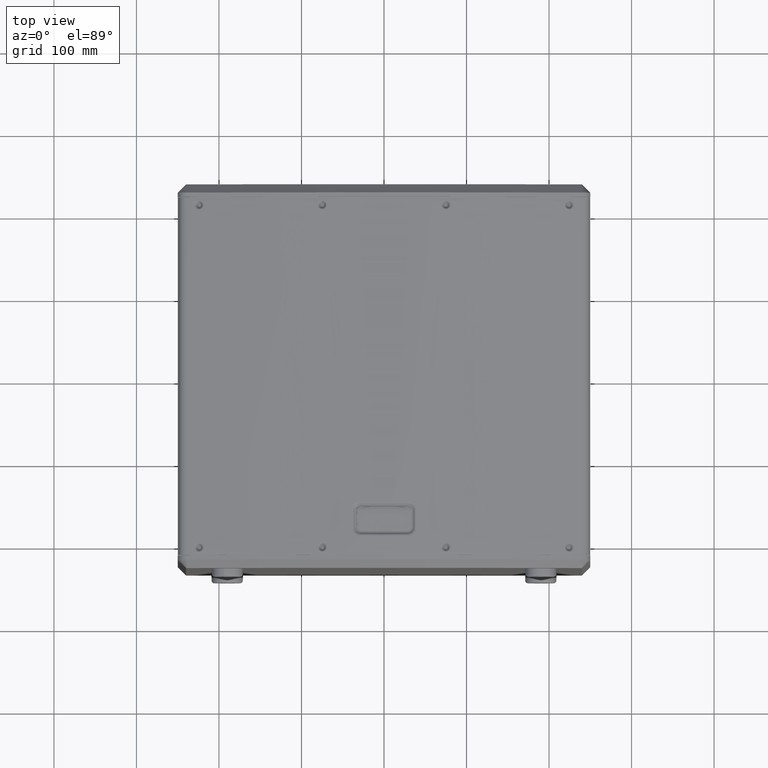
[diagram: clean part render]
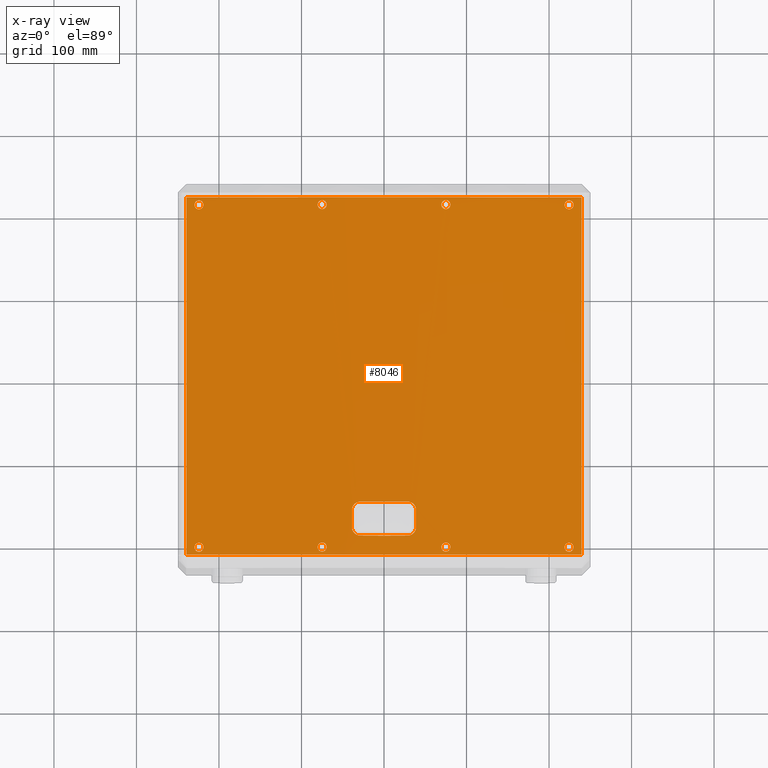
[diagram: x-ray — body ghosted, one internal face saturated and labeled with its STEP entity id]
A machine part, top view, then the same camera in x-ray: the body is ghosted and one INTERNAL B-rep face — a face not visible from any outside direction — is saturated and labeled: STEP entity #8046.
In plain terms, the highlighted cylindrical surface (partial cylindrical patch) has radius 1672.5 mm, axis along (-0, -1, 0).
Its self-contained STEP definition (entity closure, byte-faithful):
#46 = CARTESIAN_POINT ( 'NONE',  ( 78.47833913458070754, 203.3212166450574045, 273.4309079026693894 ) ) ;
#49 =( BOUNDED_CURVE ( )  B_SPLINE_CURVE ( 3, ( #5875, #15711, #12498, #25490 ),
 .UNSPECIFIED., .F., .F. ) 
 B_SPLINE_CURVE_WITH_KNOTS ( ( 4, 4 ),
 ( 3.124231709663202849, 3.158953597516382494 ),
 .UNSPECIFIED. ) 
 CURVE ( )  GEOMETRIC_REPRESENTATION_ITEM ( )  RATIONAL_B_SPLINE_CURVE ( ( 1.000000000000000000, 0.9998995350653947511, 0.9998995350653947511, 1.000000000000000000 ) ) 
 REPRESENTATION_ITEM ( '' )  );
#120 = CARTESIAN_POINT ( 'NONE',  ( 227.4832068263624478, 203.1015107558604882, 259.7304775470456661 ) ) ;
#227 = CARTESIAN_POINT ( 'NONE',  ( 224.8917643402972146, -212.9313800391532823, 260.0841857438475699 ) ) ;
#259 = CARTESIAN_POINT ( 'NONE',  ( -75.03556643069934751, -212.9793919232952533, 273.5891075419119716 ) ) ;
#272 = CARTESIAN_POINT ( 'NONE',  ( 32.21199151771963187, -153.0822300613589846, 274.9629289592322721 ) ) ;
#281 = CARTESIAN_POINT ( 'NONE',  ( -69.93447330605522438, 209.6695212975577647, 273.8103638167587519 ) ) ;
#324 = CARTESIAN_POINT ( 'NONE',  ( 229.2350000324951509, 209.6648964323844950, 259.4890260438849623 ) ) ;
#407 = CARTESIAN_POINT ( 'NONE',  ( 218.9575506619860334, 206.3601566851277198, 260.8786277408782439 ) ) ;
#467 = CARTESIAN_POINT ( 'NONE',  ( -74.32167062926488654, -212.9313800391531402, 273.6209777591968191 ) ) ;
#487 = CARTESIAN_POINT ( 'NONE',  ( -71.85032197090251316, 202.9894345920398564, 273.7290990020275672 ) ) ;
#500 = ORIENTED_EDGE ( 'NONE', *, *, #7908, .F. ) ;
#594 = CARTESIAN_POINT ( 'NONE',  ( 5.995846908675595443E-13, -193.7426406871198310, 275.2731273326911605 ) ) ;
#601 = CARTESIAN_POINT ( 'NONE',  ( 220.3748924882643792, 211.3208894897422283, 260.6908609227193665 ) ) ;
#610 = VERTEX_POINT ( 'NONE', #37901 ) ;
#627 = VERTEX_POINT ( 'NONE', #41515 ) ;
#630 = CARTESIAN_POINT ( 'NONE',  ( -218.9832451129418303, -208.7556942169256899, 260.8752327086066316 ) ) ;
#644 = CARTESIAN_POINT ( 'NONE',  ( 71.85366650353702767, 212.0130942038220780, 273.7289555562481382 ) ) ;
#684 = CARTESIAN_POINT ( 'NONE',  ( -73.63736927097930618, 202.1905662153406240, 273.6512848215728013 ) ) ;
#762 = VERTEX_POINT ( 'NONE', #13409 ) ;
#768 = DIRECTION ( 'NONE',  ( -1.000000000000000000, 0.0000000000000000000, 0.0000000000000000000 ) ) ;
#816 = EDGE_LOOP ( 'NONE', ( #23047, #500 ) ) ;
#818 = CARTESIAN_POINT ( 'NONE',  ( 79.89427955437312789, -205.1510971964762291, 273.3637966104690804 ) ) ;
#831 = ORIENTED_EDGE ( 'NONE', *, *, #36397, .F. ) ;
#846 = CARTESIAN_POINT ( 'NONE',  ( -225.8267930571524857, -202.2526582892778606, 259.9570731744574914 ) ) ;
#857 = CARTESIAN_POINT ( 'NONE',  ( 73.81075711121552274, 212.8586316552661515, 273.6436609219759930 ) ) ;
#981 = CARTESIAN_POINT ( 'NONE',  ( -219.1383718454412985, 209.2682698928433354, 260.8547380930301642 ) ) ;
#1018 = CARTESIAN_POINT ( 'NONE',  ( 223.6349280660629688, -202.0686199608448987, 260.2542490800510677 ) ) ;
#1116 = EDGE_LOOP ( 'NONE', ( #3848, #24473 ) ) ;
#1155 = CARTESIAN_POINT ( 'NONE',  ( -222.6979258868947795, -212.7467367480385008, 260.3804403225718147 ) ) ;
#1178 = ORIENTED_EDGE ( 'NONE', *, *, #26375, .F. ) ;
#1186 = CARTESIAN_POINT ( 'NONE',  ( -220.4382601683301743, 211.3729385879777283, 260.6824246968669740 ) ) ;
#1306 = CARTESIAN_POINT ( 'NONE',  ( 226.0799383136619838, -202.3366362489955463, 259.9225559902009195 ) ) ;
#1331 = VERTEX_POINT ( 'NONE', #17515 ) ;
#1369 = CARTESIAN_POINT ( 'NONE',  ( -224.8053045294782351, 212.9525400887506237, 260.0959529335290767 ) ) ;
#1436 = CARTESIAN_POINT ( 'NONE',  ( -70.45318514866723092, -210.6094736031311925, 273.7885813283808716 ) ) ;
#1501 = CARTESIAN_POINT ( 'NONE',  ( -80.25665956182481864, -208.8367375503936785, 273.3464212812656342 ) ) ;
#1601 = CARTESIAN_POINT ( 'NONE',  ( -224.7824183560069002, 202.0451635282462917, 260.0990582089063992 ) ) ;
#1607 = CIRCLE ( 'NONE', #8429, 1672.499999999999773 ) ;
#1640 = CARTESIAN_POINT ( 'NONE',  ( -72.61227708043983853, -212.4417028824303486, 273.6961459690717220 ) ) ;
#1777 = CARTESIAN_POINT ( 'NONE',  ( 69.61017672669872525, -206.3466354340849023, 273.8238994002356890 ) ) ;
#1776 = CARTESIAN_POINT ( 'NONE',  ( -229.6582470838178835, -206.9525775825308642, 259.4304072209006904 ) ) ;
#1854 = CARTESIAN_POINT ( 'NONE',  ( -73.29325262254933193, -202.2884366224853068, 273.6664150365438104 ) ) ;
#1941 = CARTESIAN_POINT ( 'NONE',  ( 227.8911089403304970, -203.4387997755203230, 259.6744246676805687 ) ) ;
#2038 = CARTESIAN_POINT ( 'NONE',  ( 226.0972818610047170, 212.6478338837883371, 259.9201629923524592 ) ) ;
#2069 = CARTESIAN_POINT ( 'NONE',  ( -74.87109434104502270, -202.0206127046504037, 273.5964859570533463 ) ) ;
#2077 = CARTESIAN_POINT ( 'NONE',  ( -35.51751017382333941, -155.0491448355863895, 274.8959750834161468 ) ) ;
#2096 = CARTESIAN_POINT ( 'NONE',  ( -38.77553784688689120, -184.7943567525495610, 274.8235820578985340 ) ) ;
#2144 = CARTESIAN_POINT ( 'NONE',  ( 229.6283870856868816, -208.2916435258183014, 259.4345455623831072 ) ) ;
#2205 = CARTESIAN_POINT ( 'NONE',  ( 71.84958536817089225, -212.0102256592378467, 273.7291309365261895 ) ) ;
#2204 = CARTESIAN_POINT ( 'NONE',  ( -223.3875984153953311, -212.8992933274361690, 260.2876106995552732 ) ) ;
#2288 = CARTESIAN_POINT ( 'NONE',  ( -69.60932729413094933, -208.6490408378483892, 273.8239347456034807 ) ) ;
#2360 = CARTESIAN_POINT ( 'NONE',  ( 229.6705790831812237, -207.7593216695104275, 259.4286966364595628 ) ) ;
#2377 = CARTESIAN_POINT ( 'NONE',  ( -226.0124283851736209, 212.6779609354313152, 259.9317378512446339 ) ) ;
#2505 = CARTESIAN_POINT ( 'NONE',  ( -80.03086931813982119, -209.5116889564441465, 273.3572512283651577 ) ) ;
#2577 = CARTESIAN_POINT ( 'NONE',  ( 229.3036885057954635, -205.4802870622988280, 259.4795226906784364 ) ) ;
#2588 = CARTESIAN_POINT ( 'NONE',  ( -228.6688361738823119, 204.3052866853534795, 259.5672753584061070 ) ) ;
#2597 = CARTESIAN_POINT ( 'NONE',  ( 77.92060859939057593, 212.0933927627978903, 273.4570143883869946 ) ) ;
#2626 = CARTESIAN_POINT ( 'NONE',  ( -228.6647661651188059, -204.2991828518010209, 259.5678373203353999 ) ) ;
#2654 = CARTESIAN_POINT ( 'NONE',  ( -80.29320135012444837, 206.3591013008813206, 273.3446621117982431 ) ) ;
#2673 = CARTESIAN_POINT ( 'NONE',  ( 228.0407960148164648, 211.4314315833750300, 259.6538469213662097 ) ) ;
#2709 = FACE_BOUND ( 'NONE', #816, .T. ) ;
#2753 = CARTESIAN_POINT ( 'NONE',  ( 239.5036101083034339, 216.5000000000000284, 258.0357260598810285 ) ) ;
#2810 = CARTESIAN_POINT ( 'NONE',  ( 79.01301638851130349, 211.1722044301049834, 273.4057147943786958 ) ) ;
#2861 = CARTESIAN_POINT ( 'NONE',  ( -74.49826683392642224, 212.9520752822040208, 273.6131225107647538 ) ) ;
#2988 = B_SPLINE_CURVE_WITH_KNOTS ( 'NONE', 3,
 ( #39921, #7565, #7779, #20554, #1155, #8398, #2204, #37974, #5167, #15658, #8187, #30983, #5811, #41378, #24806, #38199, #40972, #24591, #18842, #12242, #21182, #21397, #9014, #27987, #31403, #27769, #1776, #37367, #31820, #18224, #35026, #5594, #18011, #2626, #8590, #34174, #41598, #28619, #28404, #34585 ),
 .UNSPECIFIED., .F., .F.,
 ( 4, 2, 2, 2, 2, 2, 2, 2, 2, 2, 2, 2, 2, 2, 2, 2, 2, 2, 2, 4 ),
 ( 0.02643147392705458634, 0.02750118398804780873, 0.02857089404904103458, 0.02910574907953765444, 0.02964060411003427431, 0.03071031417102752098, 0.03178002423202076765, 0.03284973429301400738, 0.03391944435400725405, 0.03498915441500050072, 0.03605886447599374045, 0.03712857453698698712, 0.03819828459798023379, 0.03926799465897347352, 0.03980284968947008645, 0.04033770471996669937, 0.04140741478095986972, 0.04247712484195304006, 0.04301197987244969462, 0.04354683490294634918 ),
 .UNSPECIFIED. ) ;
#3067 = CARTESIAN_POINT ( 'NONE',  ( -79.53544925668069254, 210.4756050529087190, 273.3809127551978690 ) ) ;
#3077 = CARTESIAN_POINT ( 'NONE',  ( 38.58769507108883090, -185.7503694801092422, 274.8279241954219856 ) ) ;
#3194 = ORIENTED_EDGE ( 'NONE', *, *, #22137, .T. ) ;
#3276 = CARTESIAN_POINT ( 'NONE',  ( -78.22327311577942055, 203.1068351271996164, 273.4428864021427898 ) ) ;
#3289 = CARTESIAN_POINT ( 'NONE',  ( 31.58871868458513177, -193.1336097304300381, 274.9749096419843681 ) ) ;
#3294 = CARTESIAN_POINT ( 'NONE',  ( 229.6781936936238822, 207.2204554805362022, 259.4276414173349394 ) ) ;
#3431 = CARTESIAN_POINT ( 'NONE',  ( 29.68634586093532235, -152.5203997675992014, 275.0097719537525336 ) ) ;
#3442 = CARTESIAN_POINT ( 'NONE',  ( -71.98964996701964481, 212.0934665965493195, 273.7230852788830475 ) ) ;
#3463 = EDGE_CURVE ( 'NONE', #37814, #5328, #39601, .T. ) ;
#3480 = CARTESIAN_POINT ( 'NONE',  ( 38.32279831266212966, -186.6877990612348981, 274.8340179103149694 ) ) ;
#3597 = CARTESIAN_POINT ( 'NONE',  ( -221.1181616570746939, -211.9502665404291974, 260.5918775540159800 ) ) ;
#3628 = CARTESIAN_POINT ( 'NONE',  ( -75.56737123743376117, -212.9367585654762536, 273.5651113607095226 ) ) ;
#3643 = CARTESIAN_POINT ( 'NONE',  ( 31.59546330531227198, -152.8845377165533819, 274.9746916663307843 ) ) ;
#3654 = CARTESIAN_POINT ( 'NONE',  ( -71.55213705344927178, 211.7779358943525949, 273.7418763751215920 ) ) ;
#3765 = EDGE_CURVE ( 'NONE', #18736, #16451, #9119, .T. ) ;
#3809 = CARTESIAN_POINT ( 'NONE',  ( 220.3683449306077478, -211.3138725742676627, 260.6917309791150501 ) ) ;
#3814 = CARTESIAN_POINT ( 'NONE',  ( -222.0123882834675726, -202.5139851191305240, 260.4723952416154589 ) ) ;
#3848 = ORIENTED_EDGE ( 'NONE', *, *, #7787, .F. ) ;
#3862 = CARTESIAN_POINT ( 'NONE',  ( -69.61687903943199274, 208.6430991779664907, 273.8236176387393357 ) ) ;
#3988 = CARTESIAN_POINT ( 'NONE',  ( 221.0444617186303446, 211.8997584075102054, 260.6017117828056939 ) ) ;
#3993 = CARTESIAN_POINT ( 'NONE',  ( 80.09834306273680227, -209.3314135056747318, 273.3540172377126964 ) ) ;
#4029 = CARTESIAN_POINT ( 'NONE',  ( 71.14173075679164526, 203.5729020626684758, 273.7594164816163698 ) ) ;
#4073 = CARTESIAN_POINT ( 'NONE',  ( -71.29217554839827642, 203.4317884557818843, 273.7530056467044801 ) ) ;
#4128 = CARTESIAN_POINT ( 'NONE',  ( 75.23145454955358957, -212.9732452935169533, 273.5802993671925378 ) ) ;
#4153 = CARTESIAN_POINT ( 'NONE',  ( 2.775557561562891351E-14, 718.8688114800565927, -1397.226872667308953 ) ) ;
#4154 = CARTESIAN_POINT ( 'NONE',  ( -225.1327624559402523, 202.0906187168252472, 260.0515024012727849 ) ) ;
#4203 = CARTESIAN_POINT ( 'NONE',  ( 78.87916363856504631, -203.6845018578578106, 273.4120412829567499 ) ) ;
#4225 = CARTESIAN_POINT ( 'NONE',  ( -29.03472014366957055, -152.5090993227673550, 275.0210859280003319 ) ) ;
#4232 = CARTESIAN_POINT ( 'NONE',  ( -222.6798411235820652, -202.2585274510030331, 260.3828678127261469 ) ) ;
#4265 = CARTESIAN_POINT ( 'NONE',  ( -79.80890422973402565, -210.0024018362596792, 273.3678706555281224 ) ) ;
#4283 = CARTESIAN_POINT ( 'NONE',  ( 223.6349280660629688, -202.0686199608448987, 260.2542490800510677 ) ) ;
#4362 = CARTESIAN_POINT ( 'NONE',  ( -227.1180354590962907, 202.8406317932800107, 259.7805906496129751 ) ) ;
#4435 = CARTESIAN_POINT ( 'NONE',  ( 221.0217117465713841, -203.1064997266231558, 260.6047611785182312 ) ) ;
#4479 = CARTESIAN_POINT ( 'NONE',  ( -78.88247474268740689, -211.3121946363199868, 273.4118850208869844 ) ) ;
#4568 = CARTESIAN_POINT ( 'NONE',  ( -229.0424851212696069, 204.9115523996979960, 259.5156618198230944 ) ) ;
#4582 = CARTESIAN_POINT ( 'NONE',  ( -219.4821655171579380, 210.0885552099495612, 260.8092745253450744 ) ) ;
#4622 = CARTESIAN_POINT ( 'NONE',  ( -72.78884869159273308, -202.4780195060278913, 273.6884636870739769 ) ) ;
#4627 = VECTOR ( 'NONE', #20059, 1000.000000000000000 ) ;
#4682 = CARTESIAN_POINT ( 'NONE',  ( -77.45806013270636470, -202.6378678918085541, 273.4785241776272073 ) ) ;
#4736 = CARTESIAN_POINT ( 'NONE',  ( 38.83861003022300196, -162.5000000000000000, 274.8221135681181408 ) ) ;
#4764 = CARTESIAN_POINT ( 'NONE',  ( -228.7683268545962108, 210.5339818406125971, 259.5535332568095441 ) ) ;
#4767 = VECTOR ( 'NONE', #22058, 1000.000000000000000 ) ;
#4781 = CARTESIAN_POINT ( 'NONE',  ( -222.6779767943712045, 202.2592795418174774, 260.3831177770044860 ) ) ;
#4821 = ORIENTED_EDGE ( 'NONE', *, *, #16033, .F. ) ;
#4834 = CARTESIAN_POINT ( 'NONE',  ( -72.15186137404543842, -202.7952340652045393, 273.7161123667166862 ) ) ;
#4896 = CARTESIAN_POINT ( 'NONE',  ( -77.29856112025596815, -202.5585985023438980, 273.4859121573728657 ) ) ;
#5049 = CARTESIAN_POINT ( 'NONE',  ( -36.42896431451924855, -155.9563090810468680, 274.8764085957659518 ) ) ;
#5117 = CARTESIAN_POINT ( 'NONE',  ( 227.0546629412712036, -212.1880155089765765, 259.7892570716143155 ) ) ;
#5168 = CARTESIAN_POINT ( 'NONE',  ( 74.32167062926490075, -202.0686199608469167, 273.6209777591969896 ) ) ;
#5167 = CARTESIAN_POINT ( 'NONE',  ( -223.9192252088703015, -212.9602439436615100, 260.2158752212671970 ) ) ;
#5328 = VERTEX_POINT ( 'NONE', #6470 ) ;
#5401 = ORIENTED_EDGE ( 'NONE', *, *, #26890, .F. ) ;
#5452 = CARTESIAN_POINT ( 'NONE',  ( -72.62654866573544155, -202.5515704110216575, 273.6955251454808717 ) ) ;
#5546 = CARTESIAN_POINT ( 'NONE',  ( -228.2271716966231736, 211.2393270140806578, 259.6281830538364943 ) ) ;
#5595 = CARTESIAN_POINT ( 'NONE',  ( 71.28832675423738863, -211.5649151768824368, 273.7531701117360967 ) ) ;
#5594 = CARTESIAN_POINT ( 'NONE',  ( -229.1985419921563505, -205.2305514340413026, 259.4940737210951625 ) ) ;
#5669 = CARTESIAN_POINT ( 'NONE',  ( -74.32167062926488654, -212.9313800391531402, 273.6209777591968191 ) ) ;
#5681 = CARTESIAN_POINT ( 'NONE',  ( -80.33289541495950914, -208.4856462634871548, 273.3427540224160452 ) ) ;
#5700 = CARTESIAN_POINT ( 'NONE',  ( -38.52675022520060821, -186.0615153820927787, 274.8293330264988867 ) ) ;
#5730 = CARTESIAN_POINT ( 'NONE',  ( 76.09974028960193948, -202.1412483558101201, 273.5409744349816492 ) ) ;
#5756 = CARTESIAN_POINT ( 'NONE',  ( 228.8154128401471326, -204.5226050747809268, 259.5470367985312237 ) ) ;
#5811 = CARTESIAN_POINT ( 'NONE',  ( -225.8484976744185815, -212.7406422714546750, 259.9541123258488824 ) ) ;
#5842 = CARTESIAN_POINT ( 'NONE',  ( -76.97528529902912453, 202.4078267108489513, 273.5008641334434287 ) ) ;
#5857 = CARTESIAN_POINT ( 'NONE',  ( 227.5032948797135646, 211.8942200635084419, 259.7277357666791886 ) ) ;
#5875 = CARTESIAN_POINT ( 'NONE',  ( 29.03472014366958120, -152.5090993227674119, 275.0210859280003319 ) ) ;
#5901 = FACE_BOUND ( 'NONE', #14460, .T. ) ;
#5979 = VERTEX_POINT ( 'NONE', #12832 ) ;
#5983 = CARTESIAN_POINT ( 'NONE',  ( 225.5892513424875574, -212.8139592181010471, 259.9894250081621294 ) ) ;
#6048 = CARTESIAN_POINT ( 'NONE',  ( 75.23437638209313150, 212.9641575856672659, 273.5801391458948046 ) ) ;
#6079 = CARTESIAN_POINT ( 'NONE',  ( 224.3470235356547846, 202.0206436173326665, 260.1580522155739459 ) ) ;
#6287 = CARTESIAN_POINT ( 'NONE',  ( -79.89310762601917304, 209.8516432206059790, 273.3638527728362533 ) ) ;
#6303 = CARTESIAN_POINT ( 'NONE',  ( 229.6850282561165670, 207.5771082567367785, 259.4266935993666152 ) ) ;
#6435 = CARTESIAN_POINT ( 'NONE',  ( 77.76046609416850686, 202.7961536509620828, 273.4645001229938543 ) ) ;
#6470 = CARTESIAN_POINT ( 'NONE',  ( 223.6349280660632814, 202.0686199608448135, 260.2542490800508972 ) ) ;
#6489 = CARTESIAN_POINT ( 'NONE',  ( -75.58868608828947799, 202.0686199608470304, 273.5641377632132958 ) ) ;
#6595 = CARTESIAN_POINT ( 'NONE',  ( 77.29799146166436685, -212.4416728795921188, 273.4859385142877386 ) ) ;
#6641 = LINE ( 'NONE', #7074, #4627 ) ;
#6647 = CARTESIAN_POINT ( 'NONE',  ( 75.58868608828949220, 212.9313800391530833, 273.5641377632132389 ) ) ;
#6724 = CARTESIAN_POINT ( 'NONE',  ( 36.83405393917575310, -189.5429119307944745, 274.8675118906686521 ) ) ;
#6816 = CARTESIAN_POINT ( 'NONE',  ( 219.1023083006818979, 205.8420634155170603, 260.8595035104394810 ) ) ;
#6844 = CARTESIAN_POINT ( 'NONE',  ( -218.8640131791959789, -206.9751836509462350, 260.8909741263909154 ) ) ;
#6882 = CARTESIAN_POINT ( 'NONE',  ( 33.96287671428400046, -153.8877658210701895, 274.9283419190000473 ) ) ;
#6894 = CARTESIAN_POINT ( 'NONE',  ( -69.87263734053581743, 205.4803570224658813, 273.8129462826240683 ) ) ;
#6931 = CARTESIAN_POINT ( 'NONE',  ( -19.35733093019933904, -193.6587252428109309, 275.1891114209242346 ) ) ;
#7023 = CARTESIAN_POINT ( 'NONE',  ( 219.3734936610675561, 209.8516118114355606, 260.8236468898466569 ) ) ;
#7028 = CARTESIAN_POINT ( 'NONE',  ( 76.97013148145539674, -212.5848564997659764, 273.5010752015380717 ) ) ;
#7051 = CARTESIAN_POINT ( 'NONE',  ( 221.1782779719805774, -212.0072843730999637, 260.5838819142049374 ) ) ;
#7057 = CARTESIAN_POINT ( 'NONE',  ( -220.0638224003850780, -204.0316464736795865, 260.7321760446232588 ) ) ;
#7074 = CARTESIAN_POINT ( 'NONE',  ( 38.83861003022301617, 718.8688114800565927, 274.8221135681184819 ) ) ;
#7213 = CARTESIAN_POINT ( 'NONE',  ( -38.83861003022364144, -183.5000000000000000, 274.8221135681183682 ) ) ;
#7230 = CARTESIAN_POINT ( 'NONE',  ( 221.0181899416054421, 203.1090316518347549, 260.6052308477994757 ) ) ;
#7233 = CIRCLE ( 'NONE', #27618, 1672.499999999999773 ) ;
#7235 = CARTESIAN_POINT ( 'NONE',  ( 80.20075718393241004, -205.9884534867867956, 273.3491033269886543 ) ) ;
#7307 = CARTESIAN_POINT ( 'NONE',  ( -73.81095140544142907, 202.1502461029578512, 273.6436263643626603 ) ) ;
#7426 = CARTESIAN_POINT ( 'NONE',  ( 80.24780795159877300, -206.1633287318453540, 273.3468433861863787 ) ) ;
#7450 = CARTESIAN_POINT ( 'NONE',  ( 221.3141944883707026, -202.9006787588913028, 260.5657487918492734 ) ) ;
#7459 = CARTESIAN_POINT ( 'NONE',  ( -219.4729042689766914, -204.9295953284543543, 260.8104959245492296 ) ) ;
#7472 = CARTESIAN_POINT ( 'NONE',  ( 74.16052761277737204, 212.9219237769407300, 273.6281759719383899 ) ) ;
#7491 = CARTESIAN_POINT ( 'NONE',  ( -80.09350408519949838, -209.3448896261828338, 273.3542488493647511 ) ) ;
#7503 = ORIENTED_EDGE ( 'NONE', *, *, #8487, .T. ) ;
#7565 = CARTESIAN_POINT ( 'NONE',  ( -221.4050472851394034, -212.1572161521498572, 260.5536130436917119 ) ) ;
#7595 = CARTESIAN_POINT ( 'NONE',  ( -220.0612668155703773, 204.0350029719492113, 260.7325150965309604 ) ) ;
#7662 = CARTESIAN_POINT ( 'NONE',  ( 38.52675022520057979, -159.9384846179071360, 274.8293330264988867 ) ) ;
#7668 = CARTESIAN_POINT ( 'NONE',  ( 219.6189319532671220, -210.3138334419055298, 260.7911556405330771 ) ) ;
#7675 = CARTESIAN_POINT ( 'NONE',  ( -220.9746277087687076, -211.8467259933788966, 260.6110219645736947 ) ) ;
#7732 = CARTESIAN_POINT ( 'NONE',  ( -75.58868608828947799, 202.0686199608470304, 273.5641377632132958 ) ) ;
#7742 = VERTEX_POINT ( 'NONE', #9986 ) ;
#7779 = CARTESIAN_POINT ( 'NONE',  ( -221.7123931832832682, -212.3363131143889575, 260.5125436761434798 ) ) ;
#7787 = EDGE_CURVE ( 'NONE', #5328, #37814, #29854, .T. ) ;
#7794 = CARTESIAN_POINT ( 'NONE',  ( -224.4496719241550124, 212.9769871332781861, 260.1441551952935356 ) ) ;
#7804 = CARTESIAN_POINT ( 'NONE',  ( -220.8331267318806397, 211.7336944040645221, 260.6298757782881808 ) ) ;
#7874 = CARTESIAN_POINT ( 'NONE',  ( 218.9273690523603761, -208.4845675999494006, 260.8826106787321919 ) ) ;
#7908 = EDGE_CURVE ( 'NONE', #32585, #26035, #23746, .T. ) ;
#8014 = CARTESIAN_POINT ( 'NONE',  ( -219.0839793372198869, 209.0985245179227263, 260.8619253694870395 ) ) ;
#8046 = ADVANCED_FACE ( 'NONE', ( #15316, #28272, #18708, #31679, #28480, #42113, #5901, #2709, #25509, #39123 ), #26554, .F. ) ;
#8063 = CARTESIAN_POINT ( 'NONE',  ( -221.1181616570746939, -211.9502665404291974, 260.5918775540159800 ) ) ;
#8073 = CARTESIAN_POINT ( 'NONE',  ( 36.82560375654637852, -156.4724375054615848, 274.8676719626831186 ) ) ;
#8078 = CARTESIAN_POINT ( 'NONE',  ( 219.6057996544233788, -204.6913811705084925, 260.7929007532061974 ) ) ;
#8112 = CARTESIAN_POINT ( 'NONE',  ( -76.80146345694149090, -202.3511862676639907, 273.5088378298443672 ) ) ;
#8132 = CARTESIAN_POINT ( 'NONE',  ( 226.4090071825614814, -202.4669133786282771, 259.8776245284444144 ) ) ;
#8188 = CARTESIAN_POINT ( 'NONE',  ( 72.93988688431524281, -202.4152320712174173, 273.6818770530388747 ) ) ;
#8187 = CARTESIAN_POINT ( 'NONE',  ( -224.8023504637250483, -212.9529357017821951, 260.0963539430334777 ) ) ;
#8203 = CARTESIAN_POINT ( 'NONE',  ( -229.6598499870305261, 208.0298345393140949, 259.4301840079505723 ) ) ;
#8218 = CARTESIAN_POINT ( 'NONE',  ( -226.8077441354470807, 202.6607448105359879, 259.8230971494008941 ) ) ;
#8237 = EDGE_CURVE ( 'NONE', #25576, #23418, #25668, .T. ) ;
#8240 = B_SPLINE_CURVE_WITH_KNOTS ( 'NONE', 3,
 ( #35265, #25893, #18885, #3289, #28655, #16335, #25247, #38870, #41638, #39085, #19307, #25679, #6724, #38668, #35895, #32688, #3480, #32280, #3077, #38458, #22703, #16122 ),
 .UNSPECIFIED., .F., .F.,
 ( 4, 2, 2, 2, 2, 2, 2, 2, 2, 2, 4 ),
 ( 0.0000000000000000000, 0.001933725725495205432, 0.003867451450990410863, 0.005801177176485615428, 0.006768040039233195158, 0.007734902901980774889, 0.009668628627475918738, 0.01160235435297106085, 0.01256921721571867268, 0.01353608007846628103, 0.01546980580396157753 ),
 .UNSPECIFIED. ) ;
#8398 = CARTESIAN_POINT ( 'NONE',  ( -223.2134828755397393, -212.8674483046590638, 260.3110669076908721 ) ) ;
#8429 = AXIS2_PLACEMENT_3D ( 'NONE', #40803, #18263, #31229 ) ;
#8441 = CARTESIAN_POINT ( 'NONE',  ( 225.2457436549823058, 212.8895585083083972, 260.0361518927394400 ) ) ;
#8469 = CARTESIAN_POINT ( 'NONE',  ( -73.12174694345848991, -202.3465534169250191, 273.6739286617421385 ) ) ;
#8487 = EDGE_CURVE ( 'NONE', #35292, #19706, #29778, .T. ) ;
#8493 = CARTESIAN_POINT ( 'NONE',  ( -32.21199151771966740, -192.9177699386409870, 274.9629289592322721 ) ) ;
#8590 = CARTESIAN_POINT ( 'NONE',  ( -228.4484247015784035, -204.0157789466792053, 259.5976885053364072 ) ) ;
#8671 = CARTESIAN_POINT ( 'NONE',  ( -75.23467160506513096, -202.0271317248389096, 273.5801538235560884 ) ) ;
#8682 = CARTESIAN_POINT ( 'NONE',  ( -38.32279831266209413, -159.3122009387651588, 274.8340179103149126 ) ) ;
#8699 = CARTESIAN_POINT ( 'NONE',  ( -33.39872165671704352, -192.4226644869189045, 274.9397230228876765 ) ) ;
#8797 = EDGE_CURVE ( 'NONE', #19706, #11574, #38666, .T. ) ;
#8822 = VERTEX_POINT ( 'NONE', #34845 ) ;
#8825 = CARTESIAN_POINT ( 'NONE',  ( -76.78595893011477358, 212.6636453679497833, 273.5095771003107643 ) ) ;
#8972 = CARTESIAN_POINT ( 'NONE',  ( -228.8652926808543384, 210.3814817154917307, 259.5401404578439042 ) ) ;
#9009 = AXIS2_PLACEMENT_3D ( 'NONE', #4153, #29966, #768 ) ;
#9015 = CARTESIAN_POINT ( 'NONE',  ( 69.87071073146015010, -209.5146690693779306, 273.8130268102112268 ) ) ;
#9014 = CARTESIAN_POINT ( 'NONE',  ( -229.4561275399881595, -209.0764178120860208, 259.4584148664590089 ) ) ;
#9042 = CARTESIAN_POINT ( 'NONE',  ( -78.87780685610240994, 211.3168382741833966, 273.4121053014200129 ) ) ;
#9113 = CARTESIAN_POINT ( 'NONE',  ( -38.83861003022364144, -183.5000000000000000, 274.8221135681183682 ) ) ;
#9119 = B_SPLINE_CURVE_WITH_KNOTS ( 'NONE', 3,
 ( #227, #13224, #39192, #19832, #13432, #23026, #26419, #39400, #23238, #36221, #7051, #20040, #3809, #37261, #20863, #24478, #7668, #33636, #20656, #36837, #7874, #31084, #24277, #34072, #24069, #27660, #14907, #40013, #37050, #8078, #11491, #11058, #23653, #10840, #20444, #4435, #7450, #14063, #11273, #23853, #40235, #33857 ),
 .UNSPECIFIED., .F., .F.,
 ( 4, 2, 2, 2, 2, 2, 2, 2, 2, 2, 2, 2, 2, 2, 2, 2, 2, 2, 2, 2, 4 ),
 ( 0.03029236978888155338, 0.03082718318468606611, 0.03136199658049057537, 0.03243162337209960777, 0.03350125016370864017, 0.03457087695531767257, 0.03564050374692670498, 0.03617531714273115179, 0.03671013053853560554, 0.03777975733014451304, 0.03884938412175342748, 0.03938419751755792286, 0.03991901091336242519, 0.04098863770497142289, 0.04205826449658042060, 0.04312789128818941831, 0.04366270468399392757, 0.04419751807979843683, 0.04526714487140739290, 0.04633677166301634898, 0.04740639845462530505 ),
 .UNSPECIFIED. ) ;
#9165 = CARTESIAN_POINT ( 'NONE',  ( 229.5657374867117824, -208.6455936214673841, 259.4432308210082851 ) ) ;
#9187 = CARTESIAN_POINT ( 'NONE',  ( 76.78634188899633273, 202.3365651272057164, 273.5095592830271585 ) ) ;
#9231 = CARTESIAN_POINT ( 'NONE',  ( 74.87633114940362589, 212.9707485231011219, 273.5962230395269899 ) ) ;
#9247 = DIRECTION ( 'NONE',  ( -0.0000000000000000000, -1.000000000000000000, 0.0000000000000000000 ) ) ;
#9246 = CARTESIAN_POINT ( 'NONE',  ( -80.41456961793579694, 207.7827803197919252, 273.3388245500324842 ) ) ;
#9262 = CARTESIAN_POINT ( 'NONE',  ( 228.6125123940351216, 204.2274428458433988, 259.5750534772330980 ) ) ;
#9321 = CARTESIAN_POINT ( 'NONE',  ( -29.03472014366957765, -193.4909006772324176, 275.0210859280002182 ) ) ;
#9356 = B_SPLINE_CURVE_WITH_KNOTS ( 'NONE', 3,
 ( #6647, #19660, #31787, #25609, #28809, #25399, #2597, #22852, #16261, #41783, #2810, #15846, #21993, #38601, #38803, #34992, #25815, #41565, #13036, #25178, #12414, #35827, #22636, #15624, #35618, #29235, #32619, #12630, #46, #9395, #6435, #19456, #9187, #26034, #28583, #39015, #38384, #9821, #15411, #28376 ),
 .UNSPECIFIED., .F., .F.,
 ( 4, 2, 2, 2, 2, 2, 2, 2, 2, 2, 2, 2, 2, 2, 2, 2, 2, 2, 2, 4 ),
 ( 0.01351019198092208440, 0.01458065116820177372, 0.01565111035548146304, 0.01618633994912132418, 0.01672156954276118532, 0.01779202873004086249, 0.01886248791732054314, 0.01993294710460021685, 0.02100340629187989749, 0.02207386547915957120, 0.02314432466643925185, 0.02421478385371892902, 0.02528524304099860620, 0.02582047263463849163, 0.02635570222827837705, 0.02742616141555815484, 0.02849662060283793263, 0.02903185019647784582, 0.02956707979011775206, 0.03063753897739756454 ),
 .UNSPECIFIED. ) ;
#9390 = LINE ( 'NONE', #22421, #16854 ) ;
#9395 = CARTESIAN_POINT ( 'NONE',  ( 78.05995405780242891, 202.9895585678099224, 273.4505263364026177 ) ) ;
#9435 = CARTESIAN_POINT ( 'NONE',  ( 69.53020668769619306, 206.8921308871487383, 273.8272259646838052 ) ) ;
#9654 = CARTESIAN_POINT ( 'NONE',  ( 69.55320615440442111, 206.7126618361593273, 273.8262690707758793 ) ) ;
#9821 = CARTESIAN_POINT ( 'NONE',  ( 75.03171409896836508, 202.0203961759089282, 273.5892810540610753 ) ) ;
#9892 = CARTESIAN_POINT ( 'NONE',  ( 225.0510704187731790, 202.0781097668231894, 260.0625986990277170 ) ) ;
#9986 = CARTESIAN_POINT ( 'NONE',  ( 75.58868608828949220, 212.9313800391530833, 273.5641377632132389 ) ) ;
#9990 = CARTESIAN_POINT ( 'NONE',  ( 80.15512824795953861, -209.1623480681411422, 273.3512930481198850 ) ) ;
#10014 = CARTESIAN_POINT ( 'NONE',  ( -219.0699967859780770, -205.9172703324285578, 260.8637741547295832 ) ) ;
#10059 = CARTESIAN_POINT ( 'NONE',  ( 36.20525026328955676, -155.7283160011626819, 274.8812220663331800 ) ) ;
#10069 = CARTESIAN_POINT ( 'NONE',  ( -69.49454399717215836, 207.2221695973879037, 273.8287099211786995 ) ) ;
#10112 = CARTESIAN_POINT ( 'NONE',  ( 228.2907686107344034, 211.1692467131493913, 259.6194158742565037 ) ) ;
#10150 = ORIENTED_EDGE ( 'NONE', *, *, #28046, .T. ) ;
#10191 = CARTESIAN_POINT ( 'NONE',  ( 219.3613359422570284, 205.1744557118779539, 260.8252558296272241 ) ) ;
#10273 = CARTESIAN_POINT ( 'NONE',  ( -72.79059124358612110, 202.4675185582586323, 273.6884102539432320 ) ) ;
#10408 = CARTESIAN_POINT ( 'NONE',  ( 219.7928171201805867, 204.3962561129914945, 260.7681264775038130 ) ) ;
#10456 = CARTESIAN_POINT ( 'NONE',  ( 72.60916546465925592, 202.5499739464841866, 273.6963025040105322 ) ) ;
#10607 = CARTESIAN_POINT ( 'NONE',  ( 222.1168734477226110, 212.5326670907694506, 260.4583948203908790 ) ) ;
#10610 = CARTESIAN_POINT ( 'NONE',  ( 78.22116178129067521, -211.8945920387609760, 273.4429850585216286 ) ) ;
#10627 = EDGE_CURVE ( 'NONE', #11574, #37696, #12948, .T. ) ;
#10635 = CARTESIAN_POINT ( 'NONE',  ( -224.0751110918206734, -202.0319939647608578, 260.1948076864907193 ) ) ;
#10643 = CARTESIAN_POINT ( 'NONE',  ( 69.57807394145439162, 208.4922560680880963, 273.8252340475648339 ) ) ;
#10737 = CARTESIAN_POINT ( 'NONE',  ( 73.12174536910053746, -212.6627500441150573, 273.6739558130995533 ) ) ;
#10762 = CARTESIAN_POINT ( 'NONE',  ( -219.4005882249007016, 205.0917138264667585, 260.8200619222197929 ) ) ;
#10812 = CARTESIAN_POINT ( 'NONE',  ( 220.2345758938105291, 203.8305260592078980, 260.7095046486923593 ) ) ;
#10817 = CARTESIAN_POINT ( 'NONE',  ( 77.12129189909092020, -202.4779822077168774, 273.4941046460883172 ) ) ;
#10840 = CARTESIAN_POINT ( 'NONE',  ( 220.4907316631022240, -203.5748517031757387, 260.6754473239212189 ) ) ;
#10974 = CARTESIAN_POINT ( 'NONE',  ( -229.1225564815867415, 209.9115761905743511, 259.5045809663551495 ) ) ;
#11035 = CARTESIAN_POINT ( 'NONE',  ( -69.94199036161876393, -209.6650202299535408, 273.8100426200822994 ) ) ;
#11058 = CARTESIAN_POINT ( 'NONE',  ( 220.1269447038480678, -203.9686217383293751, 260.7237872113233834 ) ) ;
#11080 = CARTESIAN_POINT ( 'NONE',  ( 75.41214472927008217, 212.9520695586932959, 273.5721247162702525 ) ) ;
#11087 = VECTOR ( 'NONE', #9247, 1000.000000000000000 ) ;
#11102 = CARTESIAN_POINT ( 'NONE',  ( -80.42113932924682729, -207.4145849877113505, 273.3385080257128266 ) ) ;
#11190 = CARTESIAN_POINT ( 'NONE',  ( -229.6296052056499661, 206.7798165653520641, 259.4343767356521653 ) ) ;
#11192 = ORIENTED_EDGE ( 'NONE', *, *, #41276, .F. ) ;
#11203 = CARTESIAN_POINT ( 'NONE',  ( -223.0184305473049449, 202.1662390429389973, 260.3373505382347162 ) ) ;
#11254 = CARTESIAN_POINT ( 'NONE',  ( -71.68944730785956665, -211.8950052615451796, 273.7360075076063026 ) ) ;
#11269 = EDGE_CURVE ( 'NONE', #16359, #8822, #13400, .T. ) ;
#11273 = CARTESIAN_POINT ( 'NONE',  ( 222.2597600643502460, -202.4076606218531538, 260.4392468715641940 ) ) ;
#11414 = CARTESIAN_POINT ( 'NONE',  ( -223.3871511790266879, 212.9080064922935662, 260.2876977613987037 ) ) ;
#11425 = CARTESIAN_POINT ( 'NONE',  ( -220.5654599826573303, 211.4971025993301055, 260.6655080653565051 ) ) ;
#11491 = CARTESIAN_POINT ( 'NONE',  ( 219.7960940416709832, -204.3915502833494031, 260.7676920254101560 ) ) ;
#11574 = VERTEX_POINT ( 'NONE', #7213 ) ;
#11605 = CARTESIAN_POINT ( 'NONE',  ( 69.58560606451327146, -208.4849967496463989, 273.8249203250227310 ) ) ;
#11694 = CARTESIAN_POINT ( 'NONE',  ( -34.76106744030649054, -154.4351315938621951, 274.9118743936171541 ) ) ;
#11763 = CARTESIAN_POINT ( 'NONE',  ( 229.6760979545720716, -207.5811303730350517, 259.4279314601488977 ) ) ;
#11766 = CARTESIAN_POINT ( 'NONE',  ( -75.58868608828947799, -202.0686199608471441, 273.5641377632132389 ) ) ;
#11820 = CARTESIAN_POINT ( 'NONE',  ( 69.54565589807238268, -206.7045823433356020, 273.8265832599677765 ) ) ;
#11861 = CARTESIAN_POINT ( 'NONE',  ( 226.7479603667884192, 212.3611527437771542, 259.8312545691161404 ) ) ;
#11897 = CARTESIAN_POINT ( 'NONE',  ( -70.01523066337888679, -205.1514757934643569, 273.8069832771102483 ) ) ;
#11930 = CARTESIAN_POINT ( 'NONE',  ( -227.4077555852065871, -203.0497334595709447, 259.7408284963856886 ) ) ;
#12020 = CARTESIAN_POINT ( 'NONE',  ( 70.56553562372154431, -210.7669465516719924, 273.7838420288679799 ) ) ;
#12046 = CARTESIAN_POINT ( 'NONE',  ( -79.22314575660492153, 210.9104003520144488, 273.3957527203440350 ) ) ;
#12164 = CARTESIAN_POINT ( 'NONE',  ( 75.03944556799267218, -202.0206305070032045, 273.5889334396247818 ) ) ;
#12243 = CARTESIAN_POINT ( 'NONE',  ( 69.66128345783880604, -208.8344861034883309, 273.8217672654904504 ) ) ;
#12242 = CARTESIAN_POINT ( 'NONE',  ( -228.8748896469346619, -210.3823145560328953, 259.5388251998805913 ) ) ;
#12269 = CARTESIAN_POINT ( 'NONE',  ( -77.92656706632386943, 202.8999668800821610, 273.4567593042518752 ) ) ;
#12310 = EDGE_LOOP ( 'NONE', ( #38645, #38815 ) ) ;
#12390 = CARTESIAN_POINT ( 'NONE',  ( 229.3714312788319489, -209.3382484009529776, 259.4701443315476013 ) ) ;
#12402 = CARTESIAN_POINT ( 'NONE',  ( -229.4533287271375741, 209.0868705975150590, 259.4588025790263259 ) ) ;
#12414 = CARTESIAN_POINT ( 'NONE',  ( 80.25561466836794011, 206.1589143046370225, 273.3464715143722970 ) ) ;
#12485 = CARTESIAN_POINT ( 'NONE',  ( 229.5126854407483847, 206.1632355382583626, 259.4505789417440837 ) ) ;
#12498 = CARTESIAN_POINT ( 'NONE',  ( -9.679212469337491243, -152.1734375450566290, 275.3571495755435876 ) ) ;
#12551 = CARTESIAN_POINT ( 'NONE',  ( -29.68634586093535788, -193.4796002324007702, 275.0097719537523631 ) ) ;
#12630 = CARTESIAN_POINT ( 'NONE',  ( 78.61262151608920590, 203.4387458644692401, 273.4245938006943106 ) ) ;
#12697 = CARTESIAN_POINT ( 'NONE',  ( 229.4209630427033062, 209.1618482479316299, 259.4632836579950776 ) ) ;
#12832 = CARTESIAN_POINT ( 'NONE',  ( 74.32167062926490075, 202.0686199608468030, 273.6209777591969896 ) ) ;
#12847 = B_SPLINE_CURVE_WITH_KNOTS ( 'NONE', 3,
 ( #37189, #20998, #7804, #11425, #1186, #27593, #23994, #4582, #27167, #981, #8014, #36767, #26960, #34005, #14000, #36980, #17407, #39948, #24413, #10762, #30596, #14408, #17623, #7595, #27377, #40367, #20581, #17835, #30386, #4781, #11203, #37397, #30804, #1601, #4154, #40585, #33570, #8218, #4362, #40157 ),
 .UNSPECIFIED., .F., .F.,
 ( 4, 2, 2, 2, 2, 2, 2, 2, 2, 2, 2, 2, 2, 2, 2, 2, 2, 2, 2, 4 ),
 ( 0.01606533303666717039, 0.01660038927797816491, 0.01713544551928915596, 0.01820555800191120052, 0.01927567048453324508, 0.01981072672584425348, 0.02034578296715525841, 0.02141589544977727175, 0.02248600793239928508, 0.02355612041502130188, 0.02409117665633232416, 0.02462623289764334644, 0.02569634538026549855, 0.02676645786288765066, 0.02783657034550979931, 0.02890668282813194795, 0.02997679531075409659, 0.03104690779337625217, 0.03211702027599840081, 0.03318713275862054946 ),
 .UNSPECIFIED. ) ;
#12948 = B_SPLINE_CURVE_WITH_KNOTS ( 'NONE', 3,
 ( #9113, #21499, #2096, #5700, #22356, #38521, #14909, #28508, #37670, #18533, #15549, #35125, #31504, #27877, #8699, #34483, #8493, #28094, #22129, #21910, #12551, #9321 ),
 .UNSPECIFIED., .F., .F.,
 ( 4, 2, 2, 2, 2, 2, 2, 2, 2, 2, 4 ),
 ( 0.0000000000000000000, 0.001934763448200569908, 0.003869526896401139816, 0.005804290344601710158, 0.006771672068701994028, 0.007739053792802277898, 0.009673817241002828290, 0.01160858068920337868, 0.01257596241330366515, 0.01354334413740394989, 0.01547810758560452804 ),
 .UNSPECIFIED. ) ;
#13033 = ORIENTED_EDGE ( 'NONE', *, *, #37344, .T. ) ;
#13036 = CARTESIAN_POINT ( 'NONE',  ( 80.41494119522458561, 207.2212074895680303, 273.3388066688021922 ) ) ;
#13186 = B_SPLINE_CURVE_WITH_KNOTS ( 'NONE', 3,
 ( #26059, #25849, #39045, #35855, #32647, #38835, #3442, #39454, #3654, #16505, #33061, #13699, #29472, #281, #29886, #13281, #3862, #30098, #26264, #39248, #10069, #23083, #36057, #6894, #19896, #36491, #16709, #29677, #4073, #487, #13490, #10273, #23295, #684, #7307, #20305, #33261, #39866, #20919, #7732 ),
 .UNSPECIFIED., .F., .F.,
 ( 4, 2, 2, 2, 2, 2, 2, 2, 2, 2, 2, 2, 2, 2, 2, 2, 2, 2, 2, 4 ),
 ( 0.01345832826197740882, 0.01452879612442248107, 0.01559926398686755158, 0.01613449791809008424, 0.01666973184931261343, 0.01774019971175775506, 0.01881066757420289670, 0.01988113543664803834, 0.02041636936787060222, 0.02095160329909316610, 0.02202207116153837713, 0.02309253902398358121, 0.02416300688642879224, 0.02523347474887400327, 0.02630394261131920736, 0.02737441047376441838, 0.02844487833620962594, 0.02898011226743223145, 0.02951534619865483350, 0.03058581406110007228 ),
 .UNSPECIFIED. ) ;
#13204 = CARTESIAN_POINT ( 'NONE',  ( 80.42154002217201025, -207.5775792112445401, 273.3384887383767818 ) ) ;
#13224 = CARTESIAN_POINT ( 'NONE',  ( 224.7166798673693222, -212.9520657130931909, 260.1079441420225180 ) ) ;
#13230 = CARTESIAN_POINT ( 'NONE',  ( -218.8745504467278806, -208.0447575371578353, 260.8895832277888189 ) ) ;
#13267 = CARTESIAN_POINT ( 'NONE',  ( -29.03472014366957765, -193.4909006772324176, 275.0210859280002182 ) ) ;
#13270 = CARTESIAN_POINT ( 'NONE',  ( 37.85064978698144955, -158.1170269271581219, 274.8447878101854371 ) ) ;
#13281 = CARTESIAN_POINT ( 'NONE',  ( -69.65755110492430902, 208.8196309081803008, 273.8219231403363665 ) ) ;
#13326 = CARTESIAN_POINT ( 'NONE',  ( 229.6170158955182785, 206.6899500842013424, 259.4361215578547899 ) ) ;
#13400 = B_SPLINE_CURVE_WITH_KNOTS ( 'NONE', 3,
 ( #39717, #4128, #17171, #30157, #40127, #10737, #36737, #35027, #2205, #5595, #40767, #12020, #27572, #24807, #9015, #31404, #12243, #11605, #25008, #15237, #34586, #11820, #1777, #24592, #21398, #18225, #17811, #25213, #30777, #37368, #34386, #28195, #24390, #37771, #14591, #8188, #22030, #30984, #31192, #5168 ),
 .UNSPECIFIED., .F., .F.,
 ( 4, 2, 2, 2, 2, 2, 2, 2, 2, 2, 2, 2, 2, 2, 2, 2, 2, 2, 2, 4 ),
 ( 0.02936723156129903214, 0.03043714982871055172, 0.03150706809612207476, 0.03257698636353359434, 0.03364690463094511391, 0.03471682289835663349, 0.03578674116576816000, 0.03685665943317967957, 0.03739161856688540120, 0.03792657770059111588, 0.03899649596800246892, 0.04006641423541382196, 0.04113633250282517501, 0.04167129163653088275, 0.04220625077023660437, 0.04327616903764798517, 0.04434608730505937291, 0.04488104643876504596, 0.04541600557247072595, 0.04648592383988205123 ),
 .UNSPECIFIED. ) ;
#13409 = CARTESIAN_POINT ( 'NONE',  ( 38.83861003022355618, -183.5000000000000000, 274.8221135681182545 ) ) ;
#13411 = CARTESIAN_POINT ( 'NONE',  ( 218.8395914438772252, 207.4216409715224643, 260.8941977057357917 ) ) ;
#13432 = CARTESIAN_POINT ( 'NONE',  ( 224.0061970144185466, -212.9651452865235797, 260.2041230669916558 ) ) ;
#13470 = CARTESIAN_POINT ( 'NONE',  ( -76.09715783741482653, -212.8502424659769190, 273.5410656685766071 ) ) ;
#13490 = CARTESIAN_POINT ( 'NONE',  ( -72.14971605468835492, 202.7961826574065753, 273.7162057607466181 ) ) ;
#13546 = CARTESIAN_POINT ( 'NONE',  ( -38.83861003022347802, -162.4999999999999716, 274.8221135681181408 ) ) ;
#13614 = CARTESIAN_POINT ( 'NONE',  ( 223.1262277882113381, 212.8582498114384407, 260.3228413851082337 ) ) ;
#13618 = CARTESIAN_POINT ( 'NONE',  ( 80.41471210230531597, -207.2210461389018405, 273.3388176815958559 ) ) ;
#13646 = CARTESIAN_POINT ( 'NONE',  ( -219.4850862790474366, -210.0935308192793798, 260.8088876718758229 ) ) ;
#13661 = CARTESIAN_POINT ( 'NONE',  ( 71.43174468706916969, 211.6788863667802332, 273.7470276875198465 ) ) ;
#13675 = CARTESIAN_POINT ( 'NONE',  ( -75.74423980913381627, -212.9138570776709400, 273.5571023988317165 ) ) ;
#13699 = CARTESIAN_POINT ( 'NONE',  ( -70.45460941236733277, 210.6115933943344203, 273.7885213334776040 ) ) ;
#13835 = CARTESIAN_POINT ( 'NONE',  ( 224.8917643402972146, 212.9313800391532254, 260.0841857438474563 ) ) ;
#13839 = CARTESIAN_POINT ( 'NONE',  ( 80.35305682698427177, -206.6904186606618907, 273.3417840127783052 ) ) ;
#13862 = CARTESIAN_POINT ( 'NONE',  ( -224.2546698847040432, -202.0286790082298012, 260.1705224138114545 ) ) ;
#13876 = CARTESIAN_POINT ( 'NONE',  ( 73.96755308727010458, 202.1101188628998671, 273.6367294072677510 ) ) ;
#13884 = ORIENTED_EDGE ( 'NONE', *, *, #36604, .T. ) ;
#14000 = CARTESIAN_POINT ( 'NONE',  ( -218.8422704518600881, 207.6897677743694430, 260.8938439217988048 ) ) ;
#14044 = CARTESIAN_POINT ( 'NONE',  ( 76.29619331803294813, -212.8125543280357874, 273.5320134511715082 ) ) ;
#14063 = CARTESIAN_POINT ( 'NONE',  ( 221.9361842568231964, -202.5498791488768404, 260.4825948100250343 ) ) ;
#14104 = CARTESIAN_POINT ( 'NONE',  ( -77.11989327945090622, -212.5321552077247702, 273.4941911899715024 ) ) ;
#14154 = CARTESIAN_POINT ( 'NONE',  ( -29.03472014366957765, -193.4909006772324176, 275.0210859280002182 ) ) ;
#14242 = DIRECTION ( 'NONE',  ( -0.0000000000000000000, -1.000000000000000000, -0.0000000000000000000 ) ) ;
#14268 = CARTESIAN_POINT ( 'NONE',  ( 36.41938398531799947, -155.9688205575041025, 274.8765690322603064 ) ) ;
#14358 = EDGE_CURVE ( 'NONE', #24113, #29335, #29951, .T. ) ;
#14398 = CARTESIAN_POINT ( 'NONE',  ( -227.7121416363107187, 211.7287736544303698, 259.6990454475489969 ) ) ;
#14408 = CARTESIAN_POINT ( 'NONE',  ( -219.6588698141108580, 204.6198972112815966, 260.7858651759100326 ) ) ;
#14454 = CARTESIAN_POINT ( 'NONE',  ( -70.89455979296586463, -211.1695246890267583, 273.7699137394678246 ) ) ;
#14460 = EDGE_LOOP ( 'NONE', ( #20007, #32183 ) ) ;
#14465 = CARTESIAN_POINT ( 'NONE',  ( -29.68634283604246349, -152.5203997151414228, 275.0097720062729536 ) ) ;
#14591 = CARTESIAN_POINT ( 'NONE',  ( 72.61162107847248137, -202.5586093806560939, 273.6961744761163118 ) ) ;
#14611 = CARTESIAN_POINT ( 'NONE',  ( -229.6736994910888541, 207.3177016104922643, 259.4282640168626699 ) ) ;
#14673 = CARTESIAN_POINT ( 'NONE',  ( -72.94054900805953423, -212.5850312825223227, 273.6818481496373465 ) ) ;
#14876 = CARTESIAN_POINT ( 'NONE',  ( -71.85040668823926069, -202.9890600447149041, 273.7290958572477280 ) ) ;
#14890 = CARTESIAN_POINT ( 'NONE',  ( -38.83861003022359881, -161.8482063078965041, 274.8221135681183114 ) ) ;
#14907 = CARTESIAN_POINT ( 'NONE',  ( 218.9595353139887663, -206.3513486480319159, 260.8783656575487839 ) ) ;
#14909 = CARTESIAN_POINT ( 'NONE',  ( -37.55148104168660694, -188.4517647783363827, 274.8515533174558527 ) ) ;
#15058 = CARTESIAN_POINT ( 'NONE',  ( 226.5873064994414108, 212.4416168718012443, 259.8532308331635932 ) ) ;
#15106 = CARTESIAN_POINT ( 'NONE',  ( -37.55053539975578047, -157.5459818471991866, 274.8515751607550897 ) ) ;
#15175 = CARTESIAN_POINT ( 'NONE',  ( 227.7580036119787223, -203.3213233467754151, 259.6927274571343673 ) ) ;
#15237 = CARTESIAN_POINT ( 'NONE',  ( 69.49425624332137374, -207.7711416549178409, 273.8287218740043727 ) ) ;
#15316 = FACE_BOUND ( 'NONE', #35927, .T. ) ;
#15404 = CARTESIAN_POINT ( 'NONE',  ( -221.7123919117128708, 212.3360916701429915, 260.5125432962587411 ) ) ;
#15411 = CARTESIAN_POINT ( 'NONE',  ( 74.67606144688357972, 202.0270890337261278, 273.6052139554402061 ) ) ;
#15470 = CARTESIAN_POINT ( 'NONE',  ( -77.75708980078466936, 212.2055043221411950, 273.4646564500537238 ) ) ;
#15528 = CARTESIAN_POINT ( 'NONE',  ( -76.97071584448596582, -202.4153761841765800, 273.5010482792146149 ) ) ;
#15549 = CARTESIAN_POINT ( 'NONE',  ( -36.20525026328959228, -190.2716839988372328, 274.8812220663331800 ) ) ;
#15603 = CARTESIAN_POINT ( 'NONE',  ( 227.3431247280689433, -202.9896967542682376, 259.7497208856344741 ) ) ;
#15615 = CARTESIAN_POINT ( 'NONE',  ( -229.6502613981702723, 206.9598103333985364, 259.4315132347836652 ) ) ;
#15624 = CARTESIAN_POINT ( 'NONE',  ( 79.54450625027249089, 204.5223290852243281, 273.3804874857931395 ) ) ;
#15658 = CARTESIAN_POINT ( 'NONE',  ( -224.4505982849431973, -212.9768226332527661, 260.1440293084175437 ) ) ;
#15684 = CARTESIAN_POINT ( 'NONE',  ( -79.33169165773638554, 210.7692839828582407, 273.3906009338373337 ) ) ;
#15701 = CARTESIAN_POINT ( 'NONE',  ( 223.6349280660632814, 202.0686199608448135, 260.2542490800508972 ) ) ;
#15711 = CARTESIAN_POINT ( 'NONE',  ( 9.679212469337727498, -152.1734375450566006, 275.3571495755435876 ) ) ;
#15846 = CARTESIAN_POINT ( 'NONE',  ( 79.45545356490146105, 210.6112791203530605, 273.3847308918607837 ) ) ;
#15889 = CARTESIAN_POINT ( 'NONE',  ( 69.61636790943599351, 206.3592211480650178, 273.8236389325584810 ) ) ;
#15903 = CARTESIAN_POINT ( 'NONE',  ( -80.03485019356631369, 209.5251536084744259, 273.3570626070645062 ) ) ;
#15917 = CARTESIAN_POINT ( 'NONE',  ( 228.7288291736507233, 210.6084677421942786, 259.5589981052816597 ) ) ;
#16033 = EDGE_CURVE ( 'NONE', #5979, #7742, #28813, .T. ) ;
#16113 = CARTESIAN_POINT ( 'NONE',  ( -79.97924676473087402, 205.3391986672509120, 273.3597299522751882 ) ) ;
#16122 = CARTESIAN_POINT ( 'NONE',  ( 38.83861003022355618, -183.5000000000000000, 274.8221135681182545 ) ) ;
#16125 = CARTESIAN_POINT ( 'NONE',  ( 226.4156941225574542, 202.4701838392651325, 259.8767100202320535 ) ) ;
#16261 = CARTESIAN_POINT ( 'NONE',  ( 78.35829757762670056, 211.7776258405869498, 273.4365421926750628 ) ) ;
#16321 = VERTEX_POINT ( 'NONE', #594 ) ;
#16323 = CARTESIAN_POINT ( 'NONE',  ( -79.01899478720862646, 203.8344968161410975, 273.4054319330154499 ) ) ;
#16335 = CARTESIAN_POINT ( 'NONE',  ( 33.39767931249795652, -192.4233220682270655, 274.9397444338754894 ) ) ;
#16359 = VERTEX_POINT ( 'NONE', #17667 ) ;
#16451 = VERTEX_POINT ( 'NONE', #1018 ) ;
#16452 = CARTESIAN_POINT ( 'NONE',  ( -220.8117171153688787, -203.2727574345819903, 260.6327424128535313 ) ) ;
#16505 = CARTESIAN_POINT ( 'NONE',  ( -71.14343793921317172, 211.4287499724506461, 273.7593437963565179 ) ) ;
#16544 = CARTESIAN_POINT ( 'NONE',  ( 5.995846908675595443E-13, -193.7426406871198310, 275.2731273326911605 ) ) ;
#16554 = CARTESIAN_POINT ( 'NONE',  ( 227.9015999726345285, 203.4364264488487493, 259.6730005898036779 ) ) ;
#16634 = CARTESIAN_POINT ( 'NONE',  ( 219.2888953964896075, 205.3370329644959327, 260.8348374675297805 ) ) ;
#16701 = CARTESIAN_POINT ( 'NONE',  ( 29.03472014366958120, -152.5090993227674119, 275.0210859280003319 ) ) ;
#16709 = CARTESIAN_POINT ( 'NONE',  ( -70.56806810654840945, 204.2295973657921593, 273.7837351473294802 ) ) ;
#16734 = CARTESIAN_POINT ( 'NONE',  ( 19.35733093019925022, -193.6587252428109025, 275.1891114209242346 ) ) ;
#16827 = CARTESIAN_POINT ( 'NONE',  ( 219.1594921902727719, 205.6703589809170296, 260.8519467023796778 ) ) ;
#16854 = VECTOR ( 'NONE', #31993, 1000.000000000000000 ) ;
#16860 = CARTESIAN_POINT ( 'NONE',  ( -218.8953650438747047, -208.2247982515659714, 260.8868357481809426 ) ) ;
#16872 = CARTESIAN_POINT ( 'NONE',  ( 69.49496846482063006, 207.7825956658948598, 273.8286922639393310 ) ) ;
#16887 = CARTESIAN_POINT ( 'NONE',  ( -76.27337980713814147, -212.8093574912689974, 273.5330296383536393 ) ) ;
#17016 = DIRECTION ( 'NONE',  ( 1.000000000000000000, 0.0000000000000000000, 0.0000000000000000000 ) ) ;
#17022 = CARTESIAN_POINT ( 'NONE',  ( 223.4809316484356430, 212.9226708428422228, 260.2750577533259388 ) ) ;
#17171 = CARTESIAN_POINT ( 'NONE',  ( 74.87551603070927797, -212.9794114601215540, 273.5962876797281069 ) ) ;
#17272 = CARTESIAN_POINT ( 'NONE',  ( -220.8359791074981899, -211.7360372880580712, 260.6294958144861198 ) ) ;
#17288 = CARTESIAN_POINT ( 'NONE',  ( 70.91696929861279841, 211.1813139803095680, 273.7689522066580707 ) ) ;
#17327 = CARTESIAN_POINT ( 'NONE',  ( 223.9867288225815685, -202.0270600843500119, 260.2067825141604089 ) ) ;
#17407 = CARTESIAN_POINT ( 'NONE',  ( -218.9102004279564255, 206.6153302944939014, 260.8848788709813107 ) ) ;
#17515 = CARTESIAN_POINT ( 'NONE',  ( -75.58868608828947799, 202.0686199608470304, 273.5641377632132958 ) ) ;
#17537 = CARTESIAN_POINT ( 'NONE',  ( 225.0481184117446105, -202.0864446219591173, 260.0629709083951866 ) ) ;
#17611 = CARTESIAN_POINT ( 'NONE',  ( -223.7371965797999565, 212.9543697105093543, 260.2404863150066490 ) ) ;
#17623 = CARTESIAN_POINT ( 'NONE',  ( -219.7542606551418771, 204.4698491625126451, 260.7732255174265106 ) ) ;
#17667 = CARTESIAN_POINT ( 'NONE',  ( 75.58868608828942115, -212.9313800391530265, 273.5641377632132958 ) ) ;
#17673 = CARTESIAN_POINT ( 'NONE',  ( -70.01625471336446083, -209.8302233542297870, 273.8069333170755044 ) ) ;
#17735 = CARTESIAN_POINT ( 'NONE',  ( -76.78915084531580248, -212.6625533647234363, 273.5094305208932610 ) ) ;
#17811 = CARTESIAN_POINT ( 'NONE',  ( 70.26952432329143505, -204.6931151925460597, 273.7963029195227023 ) ) ;
#17823 = CARTESIAN_POINT ( 'NONE',  ( -227.4266565349051064, 211.9508924828921295, 259.7382619427547183 ) ) ;
#17835 = CARTESIAN_POINT ( 'NONE',  ( -221.6926919177022057, 202.6746499919288169, 260.5151734610966514 ) ) ;
#17893 = CARTESIAN_POINT ( 'NONE',  ( -38.21525469279127663, -159.0085469779508571, 274.8364811344990812 ) ) ;
#17905 = CARTESIAN_POINT ( 'NONE',  ( 38.83861003022364855, -161.8482031228028859, 274.8221135681183682 ) ) ;
#17907 = EDGE_CURVE ( 'NONE', #21775, #31314, #9390, .T. ) ;
#18011 = CARTESIAN_POINT ( 'NONE',  ( -229.0423808008342803, -204.9108886571625305, 259.5156764710527000 ) ) ;
#18085 = CARTESIAN_POINT ( 'NONE',  ( -74.16048465778156640, -202.0781683027714735, 273.6281776012482396 ) ) ;
#18225 = CARTESIAN_POINT ( 'NONE',  ( 70.17935957157995119, -204.8501914593973083, 273.8000912449388125 ) ) ;
#18224 = CARTESIAN_POINT ( 'NONE',  ( -229.4400665447422796, -205.8998290962809676, 259.4606380152064844 ) ) ;
#18263 = DIRECTION ( 'NONE',  ( -0.0000000000000000000, -1.000000000000000000, -0.0000000000000000000 ) ) ;
#18297 = CARTESIAN_POINT ( 'NONE',  ( -75.58868608828947799, -202.0686199608471441, 273.5641377632132389 ) ) ;
#18512 = CARTESIAN_POINT ( 'NONE',  ( -69.49482060472944056, -207.2215406960940527, 273.8286984020709269 ) ) ;
#18520 = CARTESIAN_POINT ( 'NONE',  ( -31.58871868458516019, -152.8663902695700187, 274.9749096419844250 ) ) ;
#18533 = CARTESIAN_POINT ( 'NONE',  ( -36.41938398531804211, -190.0311794424958123, 274.8765690322603064 ) ) ;
#18596 = CARTESIAN_POINT ( 'NONE',  ( -222.3576790242311745, 212.6306367397613997, 260.4261122922696359 ) ) ;
#18661 = CARTESIAN_POINT ( 'NONE',  ( -75.74972961427978646, 212.9219127739688702, 273.5568822244201783 ) ) ;
#18691 = EDGE_CURVE ( 'NONE', #8822, #16359, #33865, .T. ) ;
#18708 = FACE_BOUND ( 'NONE', #34958, .T. ) ;
#18719 = CARTESIAN_POINT ( 'NONE',  ( -78.62176998858838317, -211.5648330237168011, 273.4241819118453236 ) ) ;
#18736 = VERTEX_POINT ( 'NONE', #23219 ) ;
#18760 = CARTESIAN_POINT ( 'NONE',  ( 76.61747624018836689, -202.2885683782182298, 273.5172855389453730 ) ) ;
#18842 = CARTESIAN_POINT ( 'NONE',  ( -228.4652981702619456, -210.9634877997399940, 259.5953568649439376 ) ) ;
#18885 = CARTESIAN_POINT ( 'NONE',  ( 30.32733820297348259, -193.4051168407189323, 274.9982618358276341 ) ) ;
#19090 = CARTESIAN_POINT ( 'NONE',  ( -77.12380192653731115, 212.5303863367786619, 273.4940105610041883 ) ) ;
#19107 = CARTESIAN_POINT ( 'NONE',  ( 228.9191886718421642, 210.3088174099149228, 259.5326999962146601 ) ) ;
#19295 = CARTESIAN_POINT ( 'NONE',  ( -79.63112965051989534, 210.3221429991648961, 273.3763539648484766 ) ) ;
#19307 = CARTESIAN_POINT ( 'NONE',  ( 35.75386767307703195, -190.7319809432439399, 274.8909346684538377 ) ) ;
#19456 = CARTESIAN_POINT ( 'NONE',  ( 77.11865030194444159, 202.4670451354968179, 273.4942491776072302 ) ) ;
#19496 = CARTESIAN_POINT ( 'NONE',  ( 69.65639977678891626, 206.1852360311304437, 273.8219711144203075 ) ) ;
#19508 = CARTESIAN_POINT ( 'NONE',  ( -75.94253577020312207, 202.1100888831942655, 273.5481291586892780 ) ) ;
#19597 = CARTESIAN_POINT ( 'NONE',  ( 2.775557561562891351E-14, 216.5000000000000284, -1397.226872667308953 ) ) ;
#19660 = CARTESIAN_POINT ( 'NONE',  ( 75.94204128336943427, 212.8899690675038698, 273.5481515298951081 ) ) ;
#19683 = CARTESIAN_POINT ( 'NONE',  ( 30.32895403576705462, -152.5949148197494196, 274.9982336816770498 ) ) ;
#19706 = VERTEX_POINT ( 'NONE', #13546 ) ;
#19832 = CARTESIAN_POINT ( 'NONE',  ( 224.1856426662915283, -212.9707497935829110, 260.1798606575828217 ) ) ;
#19838 = CARTESIAN_POINT ( 'NONE',  ( -219.6520464762637914, -204.6143646647642242, 260.7867797535730006 ) ) ;
#19896 = CARTESIAN_POINT ( 'NONE',  ( -70.01742678802722253, 205.1468540385812389, 273.8068912849885237 ) ) ;
#20007 = ORIENTED_EDGE ( 'NONE', *, *, #11269, .F. ) ;
#20016 = CARTESIAN_POINT ( 'NONE',  ( 220.6294566755425137, 211.5682179818487896, 260.6570107070536437 ) ) ;
#20021 = CARTESIAN_POINT ( 'NONE',  ( 78.62349194039752831, -203.4366107941451105, 273.4241010440900368 ) ) ;
#20040 = CARTESIAN_POINT ( 'NONE',  ( 220.6222897861622130, -211.5618568111761135, 260.6579646788468949 ) ) ;
#20056 = VERTEX_POINT ( 'NONE', #27883 ) ;
#20059 = DIRECTION ( 'NONE',  ( 0.0000000000000000000, 1.000000000000000000, -0.0000000000000000000 ) ) ;
#20222 = CARTESIAN_POINT ( 'NONE',  ( 218.8956165562061358, 206.7106501434788868, 260.8868025223183622 ) ) ;
#20225 = CARTESIAN_POINT ( 'NONE',  ( 79.01549362708109925, -211.1694047675887589, 273.4055975692539278 ) ) ;
#20254 = CARTESIAN_POINT ( 'NONE',  ( -225.1379615778743641, -202.0917054429848463, 260.0507954000323707 ) ) ;
#20267 = CARTESIAN_POINT ( 'NONE',  ( 71.68668271601146103, 203.1069182197447276, 273.7361262946494094 ) ) ;
#20305 = CARTESIAN_POINT ( 'NONE',  ( -74.16320642220705395, 202.0865801732322495, 273.6280282426716894 ) ) ;
#20418 = CARTESIAN_POINT ( 'NONE',  ( 219.4520262221114706, 210.0113954868076007, 260.8132552255190149 ) ) ;
#20421 = CARTESIAN_POINT ( 'NONE',  ( 80.36405493253995758, -208.2964183595322254, 273.3412550972687995 ) ) ;
#20444 = CARTESIAN_POINT ( 'NONE',  ( 220.6193108925074853, -203.4528074353634111, 260.6583428926049919 ) ) ;
#20450 = CARTESIAN_POINT ( 'NONE',  ( -220.5686413468602609, -211.5000889827127253, 260.6650848010941104 ) ) ;
#20554 = CARTESIAN_POINT ( 'NONE',  ( -222.3632081409071475, -212.6329377884484870, 260.4253711567908454 ) ) ;
#20581 = CARTESIAN_POINT ( 'NONE',  ( -221.0941787578549054, 203.0528176659061330, 260.5951036833184276 ) ) ;
#20628 = CARTESIAN_POINT ( 'NONE',  ( 218.9290636087964401, 208.4942285623725411, 260.8823869552234669 ) ) ;
#20653 = CARTESIAN_POINT ( 'NONE',  ( 37.01838009461032186, -156.7368215457652809, 274.8634123137976530 ) ) ;
#20656 = CARTESIAN_POINT ( 'NONE',  ( 219.2207498077198977, -209.5198849201847793, 260.8438511117022927 ) ) ;
#20661 = CARTESIAN_POINT ( 'NONE',  ( -219.1831593875093347, -205.5794581208496936, 260.8488234322941253 ) ) ;
#20734 = ORIENTED_EDGE ( 'NONE', *, *, #10627, .T. ) ;
#20863 = CARTESIAN_POINT ( 'NONE',  ( 219.9142851906124463, -210.7601982525707456, 260.7520076439932382 ) ) ;
#20901 = CARTESIAN_POINT ( 'NONE',  ( -79.01202154336029082, -203.8268142764941615, 273.4057617596025693 ) ) ;
#20918 = CARTESIAN_POINT ( 'NONE',  ( -239.5036101083031497, -216.5000000000000284, 258.0357260598809148 ) ) ;
#20919 = CARTESIAN_POINT ( 'NONE',  ( -75.23455820785180492, 202.0271184354096761, 273.5801589537886684 ) ) ;
#20983 = CARTESIAN_POINT ( 'NONE',  ( -229.4509708240947248, 205.9061344840737604, 259.4591319214102327 ) ) ;
#20998 = CARTESIAN_POINT ( 'NONE',  ( -220.9738552477771236, 211.8461687660847304, 260.6111249946274029 ) ) ;
#21045 = CARTESIAN_POINT ( 'NONE',  ( -69.87351311099075701, -205.4779315971710218, 273.8129096929110915 ) ) ;
#21053 = CARTESIAN_POINT ( 'NONE',  ( -35.02164086153816669, -154.6329769357060968, 274.9064342703609327 ) ) ;
#21106 = CARTESIAN_POINT ( 'NONE',  ( -80.29947777783820584, -206.3467949841750055, 273.3443629934798764 ) ) ;
#21110 = ORIENTED_EDGE ( 'NONE', *, *, #39450, .F. ) ;
#21182 = CARTESIAN_POINT ( 'NONE',  ( -229.0523699899398480, -210.0700530234130099, 259.5142910272114136 ) ) ;
#21265 = CARTESIAN_POINT ( 'NONE',  ( -29.03472014366957055, -152.5090993227673550, 275.0210859280003319 ) ) ;
#21398 = CARTESIAN_POINT ( 'NONE',  ( 69.93526920628141852, -205.3284196738733272, 273.8103305833218997 ) ) ;
#21397 = CARTESIAN_POINT ( 'NONE',  ( -229.3440600788300685, -209.4141085137590039, 259.4739373114994123 ) ) ;
#21469 = CARTESIAN_POINT ( 'NONE',  ( -71.03052902951134229, -203.6847867877114027, 273.7641408209880751 ) ) ;
#21499 = CARTESIAN_POINT ( 'NONE',  ( -38.83861003022364855, -184.1517968771971709, 274.8221135681183682 ) ) ;
#21549 = CARTESIAN_POINT ( 'NONE',  ( 228.2880116562824355, -211.1723826364792274, 259.6197958077621024 ) ) ;
#21775 = VERTEX_POINT ( 'NONE', #32046 ) ;
#21833 = CARTESIAN_POINT ( 'NONE',  ( -76.09944811014665333, 212.8586788607482845, 273.5409873504309530 ) ) ;
#21894 = CARTESIAN_POINT ( 'NONE',  ( -79.34460786766659623, -210.7665779737587854, 273.3900004408899349 ) ) ;
#21910 = CARTESIAN_POINT ( 'NONE',  ( -30.32895403576709370, -193.4050851802505520, 274.9982336816770498 ) ) ;
#21970 = CARTESIAN_POINT ( 'NONE',  ( 229.5205476479232800, -206.1592472521406307, 259.4494928880811244 ) ) ;
#21993 = CARTESIAN_POINT ( 'NONE',  ( 79.65151366786001574, 210.3048951366019423, 273.3753877805096977 ) ) ;
#22030 = CARTESIAN_POINT ( 'NONE',  ( 73.10920256001838879, -202.3510531298038018, 273.6744779681372393 ) ) ;
#22058 = DIRECTION ( 'NONE',  ( -0.0000000000000000000, -1.000000000000000000, 0.0000000000000000000 ) ) ;
#22129 = CARTESIAN_POINT ( 'NONE',  ( -31.27955539935729945, -193.1999960723524907, 274.9806323550830598 ) ) ;
#22137 = EDGE_CURVE ( 'NONE', #762, #28173, #6641, .T. ) ;
#22178 = CARTESIAN_POINT ( 'NONE',  ( 226.2688290550116790, -212.5917624987672525, 259.8967752843257699 ) ) ;
#22192 = VERTEX_POINT ( 'NONE', #24469 ) ;
#22252 = CARTESIAN_POINT ( 'NONE',  ( 71.03872882092439056, 211.3112219604619781, 273.7637812703527516 ) ) ;
#22281 = CARTESIAN_POINT ( 'NONE',  ( 227.0393464866265845, 202.8026772024485638, 259.7913552863883524 ) ) ;
#22356 = CARTESIAN_POINT ( 'NONE',  ( -38.33821686633689296, -186.6905278361880960, 274.8336796419581560 ) ) ;
#22421 = CARTESIAN_POINT ( 'NONE',  ( -239.5036101083031497, 718.8688114800565927, 258.0357260598810285 ) ) ;
#22471 = CARTESIAN_POINT ( 'NONE',  ( 69.48815573577928717, 207.4269191199954605, 273.8289752922088383 ) ) ;
#22485 = CARTESIAN_POINT ( 'NONE',  ( -77.30116671054953770, 202.5500591874410645, 273.4858128706970319 ) ) ;
#22503 = CARTESIAN_POINT ( 'NONE',  ( 229.1613177696460184, 209.8301750497226692, 259.4992202873104361 ) ) ;
#22636 = CARTESIAN_POINT ( 'NONE',  ( 79.89208957353235974, 205.1464849224439888, 273.3639013691965829 ) ) ;
#22678 = CARTESIAN_POINT ( 'NONE',  ( 70.89083586411045701, 203.8346137687579471, 273.7700716952307971 ) ) ;
#22703 = CARTESIAN_POINT ( 'NONE',  ( 38.83861003022357750, -184.1517936921034106, 274.8221135681181977 ) ) ;
#22847 = VERTEX_POINT ( 'NONE', #28135 ) ;
#22852 = CARTESIAN_POINT ( 'NONE',  ( 78.21498743216969274, 211.8883666216567576, 273.4432585833262692 ) ) ;
#22870 = CARTESIAN_POINT ( 'NONE',  ( 35.03719522754667537, -154.6248568869768292, 274.9061763492702539 ) ) ;
#22926 = CARTESIAN_POINT ( 'NONE',  ( 229.3025107846236779, 205.4770303710558323, 259.4796857356928399 ) ) ;
#23001 = CARTESIAN_POINT ( 'NONE',  ( 219.6014738873410863, 204.6987704111323580, 260.7934736327238170 ) ) ;
#23007 = CARTESIAN_POINT ( 'NONE',  ( 77.92938456255485846, -212.0982243852060947, 273.4566279100612292 ) ) ;
#23026 = CARTESIAN_POINT ( 'NONE',  ( 223.4750196353120657, -212.9219400645512223, 260.2758553200779943 ) ) ;
#23033 = CARTESIAN_POINT ( 'NONE',  ( -219.3251219934636254, -209.7672015525804738, 260.8300493777489351 ) ) ;
#23047 = ORIENTED_EDGE ( 'NONE', *, *, #36918, .F. ) ;
#23072 = CARTESIAN_POINT ( 'NONE',  ( 33.39872165671700799, -153.5773355130810671, 274.9397230228877902 ) ) ;
#23083 = CARTESIAN_POINT ( 'NONE',  ( -69.57803070578812310, 206.5069788772515267, 273.8252358525388104 ) ) ;
#23130 = CARTESIAN_POINT ( 'NONE',  ( 229.3646433072339050, 209.3309939944172982, 259.4710825082512997 ) ) ;
#23219 = CARTESIAN_POINT ( 'NONE',  ( 224.8917643402972146, -212.9313800391532823, 260.0841857438475699 ) ) ;
#23238 = CARTESIAN_POINT ( 'NONE',  ( 222.1126349560956612, -212.5308549873333561, 260.4589627952537967 ) ) ;
#23244 = CARTESIAN_POINT ( 'NONE',  ( -221.0970793057985873, -203.0506994661663498, 260.5947168938587879 ) ) ;
#23295 = CARTESIAN_POINT ( 'NONE',  ( -73.12411490132623726, 202.3365067541608653, 273.6738518301881413 ) ) ;
#23418 = VERTEX_POINT ( 'NONE', #35695 ) ;
#23468 = CARTESIAN_POINT ( 'NONE',  ( 72.15292791925320159, 212.2054339696650516, 273.7160663881123810 ) ) ;
#23535 = CARTESIAN_POINT ( 'NONE',  ( -74.32167062926488654, 212.9313800391532254, 273.6209777591968191 ) ) ;
#23584 = ORIENTED_EDGE ( 'NONE', *, *, #3765, .F. ) ;
#23632 = CARTESIAN_POINT ( 'NONE',  ( 223.6349280660632814, 202.0686199608448135, 260.2542490800508972 ) ) ;
#23636 = CARTESIAN_POINT ( 'NONE',  ( 77.46012538003111558, -212.3611191004718535, 273.4784285441427869 ) ) ;
#23653 = CARTESIAN_POINT ( 'NONE',  ( 220.2448487661553145, -203.8323540835344261, 260.7081296695157562 ) ) ;
#23660 = CARTESIAN_POINT ( 'NONE',  ( -219.8595044439089179, -210.6991971401872661, 260.7592804618835771 ) ) ;
#23675 = CARTESIAN_POINT ( 'NONE',  ( 70.36648830598491600, 210.4797926303887152, 273.7922289559163573 ) ) ;
#23691 = CARTESIAN_POINT ( 'NONE',  ( -78.06066569774540653, -212.0101264654556701, 273.4504933592389762 ) ) ;
#23746 = B_SPLINE_CURVE_WITH_KNOTS ( 'NONE', 3,
 ( #18297, #8671, #2069, #18085, #31057, #1854, #8469, #4622, #5452, #4834, #14876, #27854, #21469, #31261, #40830, #11897, #21045, #28067, #41044, #18512, #30640, #31479, #2288, #27213, #40209, #11035, #17673, #27431, #1436, #14454, #40414, #11254, #34044, #30852, #1640, #14673, #27636, #38054, #38494, #5669 ),
 .UNSPECIFIED., .F., .F.,
 ( 4, 2, 2, 2, 2, 2, 2, 2, 2, 2, 2, 2, 2, 2, 2, 2, 2, 2, 2, 4 ),
 ( 0.01219269205757694471, 0.01326289890741230888, 0.01433310575724767305, 0.01486820918216533172, 0.01540331260708299038, 0.01647351945691833894, 0.01754372630675368749, 0.01861393315658903605, 0.01968414000642438461, 0.02075434685625972969, 0.02182455370609507825, 0.02289476055593042680, 0.02342986398084810282, 0.02396496740576577883, 0.02503517425560112739, 0.02610538110543647941, 0.02717558795527182797, 0.02771069138018946582, 0.02824579480510710019, 0.02931600165494243140 ),
 .UNSPECIFIED. ) ;
#23827 = CARTESIAN_POINT ( 'NONE',  ( 219.2315541669619563, 209.5231130260434611, 260.8424204511525204 ) ) ;
#23849 = CARTESIAN_POINT ( 'NONE',  ( 38.77553784688686989, -161.2056432474504106, 274.8235820578985340 ) ) ;
#23853 = CARTESIAN_POINT ( 'NONE',  ( 222.9314065227407866, -202.1878439478811345, 260.3490540391331933 ) ) ;
#23859 = CARTESIAN_POINT ( 'NONE',  ( -223.5455092946052673, -202.0770167601374681, 260.2663207119622939 ) ) ;
#23892 = CARTESIAN_POINT ( 'NONE',  ( -80.10426863974414857, -205.6592316348548763, 273.3537346947841797 ) ) ;
#23976 = CARTESIAN_POINT ( 'NONE',  ( -225.4995367021437858, 212.8267908264298569, 260.0016084939806547 ) ) ;
#23994 = CARTESIAN_POINT ( 'NONE',  ( -219.8603189924768344, 210.7007643033700219, 260.7591726630152493 ) ) ;
#24065 = CARTESIAN_POINT ( 'NONE',  ( 37.55148104168659273, -157.5482352216635604, 274.8515533174558527 ) ) ;
#24069 = CARTESIAN_POINT ( 'NONE',  ( 218.8539178014084143, -207.2366319404602280, 260.8923066655459593 ) ) ;
#24109 = CARTESIAN_POINT ( 'NONE',  ( -79.45316160825785801, -204.3855372189802893, 273.3848398113935332 ) ) ;
#24113 = VERTEX_POINT ( 'NONE', #11930 ) ;
#24197 = CARTESIAN_POINT ( 'NONE',  ( -229.3398721590238551, 209.4247709852027981, 259.4745169708991739 ) ) ;
#24274 = CARTESIAN_POINT ( 'NONE',  ( 38.33821686633687165, -159.3094721638118472, 274.8336796419581560 ) ) ;
#24277 = CARTESIAN_POINT ( 'NONE',  ( 218.8545363688301677, -207.7762546469521112, 260.8922249613461872 ) ) ;
#24334 = CARTESIAN_POINT ( 'NONE',  ( 225.5706690821459119, -202.1906065184560930, 259.9919277938092819 ) ) ;
#24390 = CARTESIAN_POINT ( 'NONE',  ( 71.98636466380533250, -202.8983605189740160, 273.7232492228646379 ) ) ;
#24404 = CARTESIAN_POINT ( 'NONE',  ( -222.6991035731277861, 212.7471162236394946, 260.3802821685615072 ) ) ;
#24413 = CARTESIAN_POINT ( 'NONE',  ( -219.1817312862228277, 205.5828171317722877, 260.8490123063053261 ) ) ;
#24422 = EDGE_CURVE ( 'NONE', #20056, #35292, #49, .T. ) ;
#24469 = CARTESIAN_POINT ( 'NONE',  ( -227.4077555852066155, 203.0497334595708594, 259.7408284963857454 ) ) ;
#24473 = ORIENTED_EDGE ( 'NONE', *, *, #3463, .F. ) ;
#24478 = CARTESIAN_POINT ( 'NONE',  ( 219.7121984611358130, -210.4653592748194910, 260.7787998913200340 ) ) ;
#24517 = CARTESIAN_POINT ( 'NONE',  ( -75.94259507533807607, -202.1100958333773860, 273.5481264756503492 ) ) ;
#24592 = CARTESIAN_POINT ( 'NONE',  ( 69.80526544999098348, -205.6596304464597154, 273.8157612732244957 ) ) ;
#24591 = CARTESIAN_POINT ( 'NONE',  ( -228.2297905377521090, -211.2366772136922748, 259.6278225256318706 ) ) ;
#24719 = B_SPLINE_CURVE_WITH_KNOTS ( 'NONE', 3,
 ( #6489, #19508, #41624, #5842, #22485, #12269, #3276, #31844, #16323, #34837, #28864, #16113, #25464, #32268, #2654, #41195, #38447, #25667, #9246, #35460, #29085, #15903, #6287, #19295, #3067, #15684, #12046, #9042, #25034, #38002, #15470, #19090, #8825, #21833, #18661, #32056, #28429, #25238, #2861, #23535 ),
 .UNSPECIFIED., .F., .F.,
 ( 4, 2, 2, 2, 2, 2, 2, 2, 2, 2, 2, 2, 2, 2, 2, 2, 2, 2, 2, 4 ),
 ( 0.03058581406110006881, 0.03165544097710816518, 0.03272506789311626502, 0.03379469480912435791, 0.03486432172513245775, 0.03593394864114055065, 0.03700357555714865049, 0.03753838901515266224, 0.03807320247315666706, 0.03914282938916460036, 0.04021245630517253367, 0.04128208322118046697, 0.04181689667918444403, 0.04235171013718842109, 0.04342133705319637521, 0.04449096396920432933, 0.04556059088521228345, 0.04663021780122023757, 0.04716503125922421463, 0.04769984471722819169 ),
 .UNSPECIFIED. ) ;
#24754 = CARTESIAN_POINT ( 'NONE',  ( 226.5924941748772881, -212.4487422835208577, 259.8525425379336866 ) ) ;
#24807 = CARTESIAN_POINT ( 'NONE',  ( 70.01342363698337579, -209.8449958791993595, 273.8070590744230799 ) ) ;
#24806 = CARTESIAN_POINT ( 'NONE',  ( -226.8248477165953148, -212.3303109999015703, 259.8207523495963187 ) ) ;
#24851 = CARTESIAN_POINT ( 'NONE',  ( 225.5940543996659926, 212.8124250913611775, 259.9887702897780173 ) ) ;
#24886 = ORIENTED_EDGE ( 'NONE', *, *, #8237, .T. ) ;
#24954 = CARTESIAN_POINT ( 'NONE',  ( 229.5957749645116621, -206.5072978339374004, 259.4390658546575423 ) ) ;
#25008 = CARTESIAN_POINT ( 'NONE',  ( 69.55602454880266805, -208.3065522299051793, 273.8261515882424533 ) ) ;
#25034 = CARTESIAN_POINT ( 'NONE',  ( -78.61962636510436653, 211.5668736366756661, 273.4242829656713525 ) ) ;
#25129 = CARTESIAN_POINT ( 'NONE',  ( 75.74957570440282950, -202.0781404293906292, 273.5568889573117985 ) ) ;
#25153 = CARTESIAN_POINT ( 'NONE',  ( 229.6697635246331686, -207.2232216523384238, 259.4288096435215039 ) ) ;
#25168 = CARTESIAN_POINT ( 'NONE',  ( -229.2018526132371790, 205.2377493683070497, 259.4936156984602462 ) ) ;
#25178 = CARTESIAN_POINT ( 'NONE',  ( 80.33153547164393160, 206.5070246250744788, 273.3428194293487650 ) ) ;
#25213 = CARTESIAN_POINT ( 'NONE',  ( 70.46322809451076807, -204.3912321540850883, 273.7881460813025001 ) ) ;
#25238 = CARTESIAN_POINT ( 'NONE',  ( -74.67616997808765689, 212.9641740467245654, 273.6051810801354236 ) ) ;
#25247 = CARTESIAN_POINT ( 'NONE',  ( 33.96055762687788615, -192.1132688205922818, 274.9283879033005746 ) ) ;
#25251 = CARTESIAN_POINT ( 'NONE',  ( 226.2623998582502338, 212.5846961402455122, 259.8976257618810450 ) ) ;
#25347 = CARTESIAN_POINT ( 'NONE',  ( 74.67593750716085310, -202.0271035581759236, 273.6052194684541519 ) ) ;
#25374 = CARTESIAN_POINT ( 'NONE',  ( 228.2696248961505319, -203.8201342604784827, 259.6223183625543243 ) ) ;
#25399 = CARTESIAN_POINT ( 'NONE',  ( 77.76931999721995226, 212.1880050703571499, 273.4640643510897462 ) ) ;
#25464 = CARTESIAN_POINT ( 'NONE',  ( -80.10849775670206441, 205.6714588775662094, 273.3535318378928309 ) ) ;
#25476 = CARTESIAN_POINT ( 'NONE',  ( 229.6279853074359778, 208.2966257875394547, 259.4346012593214255 ) ) ;
#25490 = CARTESIAN_POINT ( 'NONE',  ( -29.03472014366957055, -152.5090993227673550, 275.0210859280003319 ) ) ;
#25509 = FACE_BOUND ( 'NONE', #35995, .T. ) ;
#25576 = VERTEX_POINT ( 'NONE', #2753 ) ;
#25609 = CARTESIAN_POINT ( 'NONE',  ( 76.97694730288129961, 212.5918188227465464, 273.5007884185818625 ) ) ;
#25654 = CARTESIAN_POINT ( 'NONE',  ( 73.61256399738735468, 202.1878123404841574, 273.6524034459349082 ) ) ;
#25668 = LINE ( 'NONE', #39433, #11087 ) ;
#25667 = CARTESIAN_POINT ( 'NONE',  ( -80.42143522012477774, 207.4270750942880568, 273.3384937720779249 ) ) ;
#25679 = CARTESIAN_POINT ( 'NONE',  ( 36.42896431451924855, -190.0436909189532173, 274.8764085957659518 ) ) ;
#25684 = CARTESIAN_POINT ( 'NONE',  ( 229.4660028669224232, 205.9882605322844427, 259.4570460556288936 ) ) ;
#25815 = CARTESIAN_POINT ( 'NONE',  ( 80.36449125563069629, 208.2913750805028315, 273.3412341007496593 ) ) ;
#25849 = CARTESIAN_POINT ( 'NONE',  ( -73.96820053816898621, 212.8899570116284679, 273.6367006077380211 ) ) ;
#25870 = CARTESIAN_POINT ( 'NONE',  ( 72.93520913043502674, 202.4077488694394447, 273.6821075563557315 ) ) ;
#25893 = CARTESIAN_POINT ( 'NONE',  ( 29.68634283604244928, -193.4796002848584919, 275.0097720062729536 ) ) ;
#26034 = CARTESIAN_POINT ( 'NONE',  ( 76.27304003213423300, 202.1905870045878544, 273.5330450650277498 ) ) ;
#26035 = VERTEX_POINT ( 'NONE', #38906 ) ;
#26059 = CARTESIAN_POINT ( 'NONE',  ( -74.32167062926488654, 212.9313800391532254, 273.6209777591968191 ) ) ;
#26188 = ORIENTED_EDGE ( 'NONE', *, *, #8797, .T. ) ;
#26190 = CARTESIAN_POINT ( 'NONE',  ( 78.76338614195393006, -211.4316550156012511, 273.4175097993830832 ) ) ;
#26216 = CARTESIAN_POINT ( 'NONE',  ( -227.4077555852065871, -203.0497334595709447, 259.7408284963856886 ) ) ;
#26264 = CARTESIAN_POINT ( 'NONE',  ( -69.53090498340513648, 208.1138647195151066, 273.8271969107769337 ) ) ;
#26304 = CARTESIAN_POINT ( 'NONE',  ( 226.8863634708841630, 202.7137518975647197, 259.8123100758689361 ) ) ;
#26375 = EDGE_CURVE ( 'NONE', #7742, #5979, #9356, .T. ) ;
#26392 = CARTESIAN_POINT ( 'NONE',  ( 219.0041183483197358, 208.8420074258689283, 260.8724784835960122 ) ) ;
#26419 = CARTESIAN_POINT ( 'NONE',  ( 223.1279749892490258, -212.8585907967617175, 260.3226060872360108 ) ) ;
#26425 = CARTESIAN_POINT ( 'NONE',  ( -226.8129675779534296, -202.6634797849130507, 259.8223823380879480 ) ) ;
#26554 = CYLINDRICAL_SURFACE ( 'NONE', #9009, 1672.499999999999773 ) ;
#26601 = CARTESIAN_POINT ( 'NONE',  ( 221.1883638576474027, 212.0036481285744401, 260.5825194148168293 ) ) ;
#26606 = CARTESIAN_POINT ( 'NONE',  ( 80.30037813957407877, -208.6485624279927151, 273.3443196704897105 ) ) ;
#26627 = CARTESIAN_POINT ( 'NONE',  ( -221.6960549192739904, -202.6728135997642539, 260.5147237601626102 ) ) ;
#26638 = CARTESIAN_POINT ( 'NONE',  ( 69.65559419472138813, 208.8472980217072177, 273.8220075955119910 ) ) ;
#26806 = CARTESIAN_POINT ( 'NONE',  ( 79.89338879418350814, -209.8303538979886298, 273.3638321664499813 ) ) ;
#26830 = CARTESIAN_POINT ( 'NONE',  ( -220.2957660315635451, -203.7633318901447694, 260.7013806650689389 ) ) ;
#26890 = EDGE_CURVE ( 'NONE', #610, #22192, #12847, .T. ) ;
#26940 = ORIENTED_EDGE ( 'NONE', *, *, #24422, .T. ) ;
#26960 = CARTESIAN_POINT ( 'NONE',  ( -218.9532797254197192, 208.5753152451322592, 260.8791891280089317 ) ) ;
#27008 = CARTESIAN_POINT ( 'NONE',  ( 222.2635545587070567, 202.4060164535925423, 260.4387384637591936 ) ) ;
#27012 = CARTESIAN_POINT ( 'NONE',  ( 80.03602367322079658, -205.4775249976232487, 273.3570064011097429 ) ) ;
#27037 = CARTESIAN_POINT ( 'NONE',  ( -227.1187162180369228, -202.8411231220347020, 259.7804972199931512 ) ) ;
#27053 = CARTESIAN_POINT ( 'NONE',  ( 74.69543301751406261, 212.9651151133049325, 273.6043199254953038 ) ) ;
#27167 = CARTESIAN_POINT ( 'NONE',  ( -219.3254503530850172, 209.7677975025538615, 260.8300059270605402 ) ) ;
#27213 = CARTESIAN_POINT ( 'NONE',  ( -69.75464437689110753, -209.1627581709767867, 273.8178729748521505 ) ) ;
#27276 = CARTESIAN_POINT ( 'NONE',  ( -78.21771174836769092, -203.1025497972802611, 273.4431470250965504 ) ) ;
#27362 = CARTESIAN_POINT ( 'NONE',  ( -228.4536984101581822, 204.0217441363632531, 259.5969618255750788 ) ) ;
#27377 = CARTESIAN_POINT ( 'NONE',  ( -220.2948464030756952, 203.7640981248999594, 260.7015031429692158 ) ) ;
#27431 = CARTESIAN_POINT ( 'NONE',  ( -70.26098988515184374, -210.3097924861965851, 273.7966669536435234 ) ) ;
#27572 = CARTESIAN_POINT ( 'NONE',  ( 70.36252448865494102, -210.4736533277491901, 273.7923958239874196 ) ) ;
#27583 = CARTESIAN_POINT ( 'NONE',  ( -227.6974418098366755, 203.2588106579175360, 259.7010709959099586 ) ) ;
#27593 = CARTESIAN_POINT ( 'NONE',  ( -220.0760763952154093, 210.9832727227249336, 260.7305543883299492 ) ) ;
#27618 = AXIS2_PLACEMENT_3D ( 'NONE', #19597, #14242, #17016 ) ;
#27636 = CARTESIAN_POINT ( 'NONE',  ( -73.10723370702540080, -212.6481979385318937, 273.6745640000775666 ) ) ;
#27660 = CARTESIAN_POINT ( 'NONE',  ( 218.8968624162811523, -206.7014556099498748, 260.8866380605458062 ) ) ;
#27739 = ORIENTED_EDGE ( 'NONE', *, *, #14358, .F. ) ;
#27769 = CARTESIAN_POINT ( 'NONE',  ( -229.6819796241237555, -207.3075415323473862, 259.4271160554981179 ) ) ;
#27854 = CARTESIAN_POINT ( 'NONE',  ( -71.28633865189917174, -203.4367249903548043, 273.7532551650695609 ) ) ;
#27862 = CARTESIAN_POINT ( 'NONE',  ( -38.83861003022347802, -162.4999999999999716, 274.8221135681181408 ) ) ;
#27877 = CARTESIAN_POINT ( 'NONE',  ( -33.96287671428406441, -192.1122341789297536, 274.9283419189999336 ) ) ;
#27883 = CARTESIAN_POINT ( 'NONE',  ( 29.03472014366958120, -152.5090993227674119, 275.0210859280003319 ) ) ;
#27931 = CARTESIAN_POINT ( 'NONE',  ( 224.8917643402972146, -212.9313800391532823, 260.0841857438475699 ) ) ;
#27987 = CARTESIAN_POINT ( 'NONE',  ( -229.6145701232321414, -208.3821339126714065, 259.4364623478696785 ) ) ;
#28046 = EDGE_CURVE ( 'NONE', #22847, #762, #8240, .T. ) ;
#28067 = CARTESIAN_POINT ( 'NONE',  ( -69.65402305461179822, -206.1585416746643489, 273.8220730961808158 ) ) ;
#28075 = CARTESIAN_POINT ( 'NONE',  ( -37.85015952614917722, -158.1162219906515531, 274.8447988517634712 ) ) ;
#28094 = CARTESIAN_POINT ( 'NONE',  ( -31.59546330531232172, -193.1154622834466750, 274.9746916663307843 ) ) ;
#28135 = CARTESIAN_POINT ( 'NONE',  ( 29.03472014366956344, -193.4909006772325313, 275.0210859280003319 ) ) ;
#28147 = CARTESIAN_POINT ( 'NONE',  ( 227.4970463765806414, -211.8881071988022882, 259.7285780444840384 ) ) ;
#28173 = VERTEX_POINT ( 'NONE', #4736 ) ;
#28195 = CARTESIAN_POINT ( 'NONE',  ( 71.69315540865460434, -203.1019191421786161, 273.7358488934806360 ) ) ;
#28272 = FACE_BOUND ( 'NONE', #1116, .T. ) ;
#28283 = CARTESIAN_POINT ( 'NONE',  ( -38.77553612530612526, -161.2041822674366642, 274.8235821600771374 ) ) ;
#28350 = CARTESIAN_POINT ( 'NONE',  ( 229.2421860476711117, -209.6699437331934064, 259.4880383424167576 ) ) ;
#28364 = CARTESIAN_POINT ( 'NONE',  ( -229.0422007016098576, 210.0704952070728950, 259.5156928121008377 ) ) ;
#28376 = CARTESIAN_POINT ( 'NONE',  ( 74.32167062926490075, 202.0686199608468030, 273.6209777591969896 ) ) ;
#28404 = CARTESIAN_POINT ( 'NONE',  ( -227.5521835086430258, -203.1539724016664081, 259.7210067280497015 ) ) ;
#28429 = CARTESIAN_POINT ( 'NONE',  ( -75.03465575445612501, 212.9707467373409884, 273.5891203816890425 ) ) ;
#28472 = EDGE_CURVE ( 'NONE', #28173, #20056, #30049, .T. ) ;
#28480 = FACE_BOUND ( 'NONE', #32720, .T. ) ;
#28491 = CARTESIAN_POINT ( 'NONE',  ( -79.97425012515103049, -205.3280805115938108, 273.3599690708916796 ) ) ;
#28508 = CARTESIAN_POINT ( 'NONE',  ( -37.01838009461035028, -189.2631784542346907, 274.8634123137977099 ) ) ;
#28560 = CARTESIAN_POINT ( 'NONE',  ( 228.0434819497731951, -211.4289123696234469, 259.6534773932605731 ) ) ;
#28576 = CARTESIAN_POINT ( 'NONE',  ( -229.5424465588058638, 206.2498460416504145, 259.4464562267516499 ) ) ;
#28583 = CARTESIAN_POINT ( 'NONE',  ( 76.09935978631079934, 202.1502346319500134, 273.5409653616691230 ) ) ;
#28619 = CARTESIAN_POINT ( 'NONE',  ( -227.6928602971551356, -203.2665061483124305, 259.7016802629843255 ) ) ;
#28655 = CARTESIAN_POINT ( 'NONE',  ( 32.21413160816840104, -192.9335189645522917, 274.9629640605104441 ) ) ;
#28809 = CARTESIAN_POINT ( 'NONE',  ( 77.30343827120236710, 212.4486835330289409, 273.4857073728455816 ) ) ;
#28813 = B_SPLINE_CURVE_WITH_KNOTS ( 'NONE', 3,
 ( #39614, #13876, #25654, #25870, #10456, #38847, #20267, #4029, #22678, #38643, #35669, #33227, #39824, #19496, #15889, #9654, #9435, #22471, #16872, #10643, #26638, #29849, #30265, #23675, #28852, #17288, #22252, #36646, #13661, #644, #23468, #36447, #30058, #857, #7472, #27053, #9231, #6048, #11080, #30899 ),
 .UNSPECIFIED., .F., .F.,
 ( 4, 2, 2, 2, 2, 2, 2, 2, 2, 2, 2, 2, 2, 2, 2, 2, 2, 2, 2, 4 ),
 ( 0.03063753897739756454, 0.03170717271890460126, 0.03277680646041163104, 0.03384644020191866776, 0.03491607394342570447, 0.03598570768493274119, 0.03705534142643977097, 0.03759015829719328239, 0.03812497516794680075, 0.03919460890945382359, 0.04026424265096084643, 0.04133387639246786927, 0.04240351013397489210, 0.04293832700472840352, 0.04347314387548191494, 0.04454277761698891697, 0.04561241135849592593, 0.04668204510000292795, 0.04721686197075643937, 0.04775167884150995079 ),
 .UNSPECIFIED. ) ;
#28852 = CARTESIAN_POINT ( 'NONE',  ( 70.57155306822721741, 210.7748661502988625, 273.7835878087647075 ) ) ;
#28864 = CARTESIAN_POINT ( 'NONE',  ( -79.65241872198721751, 204.6960850007417321, 273.3753447850788802 ) ) ;
#29085 = CARTESIAN_POINT ( 'NONE',  ( -80.25407306098196614, 208.8471338094514635, 273.3465455934513670 ) ) ;
#29235 = CARTESIAN_POINT ( 'NONE',  ( 78.99444958791900717, 203.8202683454578619, 273.4065821571041965 ) ) ;
#29308 = CARTESIAN_POINT ( 'NONE',  ( 229.5649752839055964, 208.6479713827393709, 259.4433363716862004 ) ) ;
#29335 = VERTEX_POINT ( 'NONE', #8063 ) ;
#29416 = CARTESIAN_POINT ( 'NONE',  ( -218.8476767436733326, -207.5089726110442427, 260.8931303523957581 ) ) ;
#29472 = CARTESIAN_POINT ( 'NONE',  ( -70.25836684888915329, 210.3050965042104110, 273.7967771236305339 ) ) ;
#29602 = CARTESIAN_POINT ( 'NONE',  ( 79.45700116927318390, -210.6089729338798691, 273.3846572243763262 ) ) ;
#29677 = CARTESIAN_POINT ( 'NONE',  ( -71.03096840447703642, 203.6841852185172002, 273.7641222793605493 ) ) ;
#29778 = B_SPLINE_CURVE_WITH_KNOTS ( 'NONE', 3,
 ( #21265, #14465, #31272, #18520, #34258, #41056, #40423, #11694, #21053, #2077, #41259, #5049, #37861, #15106, #28075, #17893, #8682, #31487, #31068, #28283, #14890, #27862 ),
 .UNSPECIFIED., .F., .F.,
 ( 4, 2, 2, 2, 2, 2, 2, 2, 2, 2, 4 ),
 ( 3.469446951953614189E-18, 0.001933725725495229067, 0.003867451450990465073, 0.005801177176485701296, 0.006768040039233295772, 0.007734902901980890248, 0.009668628627476064455, 0.01160235435297123779, 0.01256921721571882013, 0.01353608007846640246, 0.01546980580396165386 ),
 .UNSPECIFIED. ) ;
#29804 = CARTESIAN_POINT ( 'NONE',  ( 221.6431712059984704, 212.2881690873708180, 260.5217753601108370 ) ) ;
#29808 = CARTESIAN_POINT ( 'NONE',  ( 76.80357918395142747, -212.6480033263705423, 273.5087404352567546 ) ) ;
#29834 = CARTESIAN_POINT ( 'NONE',  ( -223.7210171976264235, -202.0562009758784541, 260.2426408929509307 ) ) ;
#29849 = CARTESIAN_POINT ( 'NONE',  ( 69.87476823611604004, 209.5249800096420074, 273.8128571997569907 ) ) ;
#29854 = B_SPLINE_CURVE_WITH_KNOTS ( 'NONE', 3,
 ( #23632, #33395, #36405, #27008, #39172, #39376, #7230, #36606, #10812, #10408, #23001, #10191, #16634, #16827, #6816, #407, #20222, #13411, #33181, #20628, #26392, #35979, #23827, #7023, #20418, #36814, #39787, #601, #20016, #3988, #26601, #39987, #29804, #10607, #32978, #13614, #17022, #33610, #30013, #13835 ),
 .UNSPECIFIED., .F., .F.,
 ( 4, 2, 2, 2, 2, 2, 2, 2, 2, 2, 2, 2, 2, 2, 2, 2, 2, 2, 2, 4 ),
 ( 0.03155825910923013705, 0.03262818262871267777, 0.03369810614819522543, 0.03476802966767776615, 0.03583795318716030687, 0.03690787670664284759, 0.03744283846638408325, 0.03797780022612531892, 0.03904772374560784576, 0.04011764726509037260, 0.04118757078457289250, 0.04172253254431421143, 0.04225749430405553037, 0.04332741782353804333, 0.04439734134302055629, 0.04493230310276181971, 0.04546726486250309007, 0.04653718838198567243, 0.04760711190146825478, 0.04867703542095083713 ),
 .UNSPECIFIED. ) ;
#29886 = CARTESIAN_POINT ( 'NONE',  ( -69.80427395485392594, 209.3379816172976575, 273.8158027069926561 ) ) ;
#29921 = CARTESIAN_POINT ( 'NONE',  ( -9.678847790685665586, -193.7426406871196605, 275.2731273326909331 ) ) ;
#29951 = B_SPLINE_CURVE_WITH_KNOTS ( 'NONE', 3,
 ( #26216, #27037, #26425, #39811, #846, #20254, #36842, #13862, #10635, #29834, #23859, #39407, #4232, #3814, #26627, #23244, #16452, #26830, #7057, #19838, #7459, #20661, #10014, #36225, #6844, #29416, #33006, #13230, #16860, #630, #32798, #23033, #13646, #23660, #33213, #36638, #20450, #17272, #7675, #3597 ),
 .UNSPECIFIED., .F., .F.,
 ( 4, 2, 2, 2, 2, 2, 2, 2, 2, 2, 2, 2, 2, 2, 2, 2, 2, 2, 2, 4 ),
 ( 0.009305238959309182836, 0.01037562864479339882, 0.01144601833027761653, 0.01251640801576183251, 0.01305160285850389887, 0.01358679770124596523, 0.01465718738673007539, 0.01572757707221418555, 0.01679796675769829398, 0.01786835644318240240, 0.01893874612866651430, 0.02000913581415062620, 0.02107952549963473809, 0.02161472034237674894, 0.02214991518511875979, 0.02322030487060271903, 0.02429069455608667133, 0.02536108424157063057, 0.02589627908431260672, 0.02643147392705458287 ),
 .UNSPECIFIED. ) ;
#29966 = DIRECTION ( 'NONE',  ( -0.0000000000000000000, -1.000000000000000000, 0.0000000000000000000 ) ) ;
#30013 = CARTESIAN_POINT ( 'NONE',  ( 224.5378551902634570, 212.9731932802675942, 260.1322100738387917 ) ) ;
#30018 = CARTESIAN_POINT ( 'NONE',  ( 79.64902536847358760, -210.3093353456508794, 273.3755065234279868 ) ) ;
#30049 = B_SPLINE_CURVE_WITH_KNOTS ( 'NONE', 3,
 ( #40433, #17905, #23849, #7662, #24274, #13270, #24065, #20653, #8073, #14268, #10059, #32835, #22870, #6882, #23072, #35845, #272, #3643, #36047, #19683, #3431, #16701 ),
 .UNSPECIFIED., .F., .F.,
 ( 4, 2, 2, 2, 2, 2, 2, 2, 2, 2, 4 ),
 ( 8.441528768080324345E-17, 0.001934763448200678762, 0.003869526896401273390, 0.005804290344601867151, 0.006771672068702164031, 0.007739053792802460044, 0.009673817241002977477, 0.01160858068920349144, 0.01257596241330374842, 0.01354334413740400714, 0.01547810758560454192 ),
 .UNSPECIFIED. ) ;
#30058 = CARTESIAN_POINT ( 'NONE',  ( 73.12474016826463696, 212.6637744271715462, 273.6738246386670994 ) ) ;
#30098 = CARTESIAN_POINT ( 'NONE',  ( -69.55371113686250339, 208.2906951747712014, 273.8262480521866564 ) ) ;
#30157 = CARTESIAN_POINT ( 'NONE',  ( 74.16614257474654437, -212.9226192147757786, 273.6279263348389463 ) ) ;
#30179 = EDGE_LOOP ( 'NONE', ( #39129, #11192, #24886, #36213 ) ) ;
#30236 = EDGE_LOOP ( 'NONE', ( #23584, #831 ) ) ;
#30265 = CARTESIAN_POINT ( 'NONE',  ( 70.01656148497245624, 209.8516250984403371, 273.8069276443509352 ) ) ;
#30284 = EDGE_CURVE ( 'NONE', #23418, #31314, #1607, .T. ) ;
#30288 = CARTESIAN_POINT ( 'NONE',  ( -77.75531120595657342, -212.2066509483582308, 273.4647394308370281 ) ) ;
#30304 = CARTESIAN_POINT ( 'NONE',  ( 224.8700523599354426, -202.0631427146925034, 260.0871414545625271 ) ) ;
#30386 = CARTESIAN_POINT ( 'NONE',  ( -222.0152713219682710, 202.5128431916643592, 260.4720086346795824 ) ) ;
#30495 = CARTESIAN_POINT ( 'NONE',  ( -80.36389813853362796, -206.7044739429468621, 273.3412626378676009 ) ) ;
#30515 = CARTESIAN_POINT ( 'NONE',  ( 225.3982824204457529, -202.1502217479008721, 260.0153834623619673 ) ) ;
#30583 = CARTESIAN_POINT ( 'NONE',  ( -229.6766597465739039, 207.4961208445635350, 259.4278535806368495 ) ) ;
#30596 = CARTESIAN_POINT ( 'NONE',  ( -219.4822169325644836, 204.9303672221253123, 260.8092591430766447 ) ) ;
#30640 = CARTESIAN_POINT ( 'NONE',  ( -69.48806422931295401, -207.5778964855482513, 273.8289791085965703 ) ) ;
#30703 = CARTESIAN_POINT ( 'NONE',  ( -79.64921711513201785, -204.6911040185473212, 273.3754973432338033 ) ) ;
#30748 = B_SPLINE_CURVE_WITH_KNOTS ( 'NONE', 3,
 ( #467, #32825, #259, #3628, #13675, #13470, #16887, #17735, #14104, #30288, #23691, #18719, #4479, #21894, #34104, #4265, #34897, #2505, #7491, #1501, #5681, #31692, #11102, #30495, #21106, #23892, #28491, #30703, #24109, #20901, #38063, #27276, #33679, #4682, #4896, #15528, #8112, #41474, #24517, #37296 ),
 .UNSPECIFIED., .F., .F.,
 ( 4, 2, 2, 2, 2, 2, 2, 2, 2, 2, 2, 2, 2, 2, 2, 2, 2, 2, 2, 4 ),
 ( 0.02931600165494243140, 0.03038588958356023759, 0.03092083354786914068, 0.03145577751217804030, 0.03252566544079586036, 0.03359555336941367348, 0.03466544129803148661, 0.03573532922664929973, 0.03627027319095821323, 0.03680521715526711979, 0.03787510508388494679, 0.03894499301250275991, 0.04001488094112058691, 0.04108476886973840697, 0.04215465679835622703, 0.04322454472697404709, 0.04429443265559186715, 0.04482937661990077371, 0.04536432058420968028, 0.04643420851282749340 ),
 .UNSPECIFIED. ) ;
#30777 = CARTESIAN_POINT ( 'NONE',  ( 70.56686686385801011, -204.2460049259991877, 273.7837734634775302 ) ) ;
#30788 = CARTESIAN_POINT ( 'NONE',  ( -226.8275568507946502, 212.3285971882428385, 259.8203809947862055 ) ) ;
#30804 = CARTESIAN_POINT ( 'NONE',  ( -224.0768001841733508, 202.0232485884492348, 260.1946079392114939 ) ) ;
#30852 = CARTESIAN_POINT ( 'NONE',  ( -72.45005749163333064, -212.3611027841209875, 273.7031868007687194 ) ) ;
#30899 = CARTESIAN_POINT ( 'NONE',  ( 75.58868608828949220, 212.9313800391530833, 273.5641377632132389 ) ) ;
#30984 = CARTESIAN_POINT ( 'NONE',  ( 73.62007133412619453, -202.1857852211136333, 273.6520730717411425 ) ) ;
#30983 = CARTESIAN_POINT ( 'NONE',  ( -225.5008765249353075, -212.8354731408905991, 260.0014546680096714 ) ) ;
#31057 = CARTESIAN_POINT ( 'NONE',  ( -73.81040542764957024, -202.1413184838270638, 273.6436768205137469 ) ) ;
#31068 = CARTESIAN_POINT ( 'NONE',  ( -38.58769507108905117, -160.2496305198907294, 274.8279241954222698 ) ) ;
#31084 = CARTESIAN_POINT ( 'NONE',  ( 218.8663750891105053, -207.9542721098912921, 260.8906624537447101 ) ) ;
#31138 = CARTESIAN_POINT ( 'NONE',  ( 228.6145001243569084, -204.2299262238143456, 259.5747793716604974 ) ) ;
#31192 = CARTESIAN_POINT ( 'NONE',  ( 73.96748862713030803, -202.1101264169596732, 273.6367322745458068 ) ) ;
#31229 = DIRECTION ( 'NONE',  ( 1.000000000000000000, 0.0000000000000000000, 0.0000000000000000000 ) ) ;
#31261 = CARTESIAN_POINT ( 'NONE',  ( -70.56958433956195620, -204.2277271846424753, 273.7836709795584511 ) ) ;
#31272 = CARTESIAN_POINT ( 'NONE',  ( -30.32733820297348970, -152.5948831592810109, 274.9982618358276341 ) ) ;
#31314 = VERTEX_POINT ( 'NONE', #20918 ) ;
#31404 = CARTESIAN_POINT ( 'NONE',  ( 69.70747020514765779, -209.0065288623322601, 273.8198416897697598 ) ) ;
#31403 = CARTESIAN_POINT ( 'NONE',  ( -229.6607127250972837, -208.0216002559608341, 259.4300644038044652 ) ) ;
#31479 = CARTESIAN_POINT ( 'NONE',  ( -69.54545446584170065, -208.2956843914842580, 273.8265916443431252 ) ) ;
#31487 = CARTESIAN_POINT ( 'NONE',  ( -38.50897216698853498, -159.9321986465810994, 274.8297405286651838 ) ) ;
#31504 = CARTESIAN_POINT ( 'NONE',  ( -35.03719522754671800, -191.3751431130231140, 274.9061763492702539 ) ) ;
#31556 = CARTESIAN_POINT ( 'NONE',  ( 227.6390303579050851, -211.7774540958570810, 259.7090767214613720 ) ) ;
#31679 = FACE_BOUND ( 'NONE', #12310, .T. ) ;
#31692 = CARTESIAN_POINT ( 'NONE',  ( -80.41535905787596050, -207.7708052233487592, 273.3387865426458916 ) ) ;
#31787 = CARTESIAN_POINT ( 'NONE',  ( 76.29083942683833186, 212.8142498422479036, 273.5322589112529954 ) ) ;
#31820 = CARTESIAN_POINT ( 'NONE',  ( -229.5327229528518842, -206.2463588009649129, 259.4478030856993200 ) ) ;
#31844 = CARTESIAN_POINT ( 'NONE',  ( -78.76792862981922383, 203.5726032916439578, 273.4172958334205532 ) ) ;
#31993 = DIRECTION ( 'NONE',  ( -0.0000000000000000000, -1.000000000000000000, 0.0000000000000000000 ) ) ;
#32046 = CARTESIAN_POINT ( 'NONE',  ( -239.5036101083031497, 216.5000000000000284, 258.0357260598809148 ) ) ;
#32056 = CARTESIAN_POINT ( 'NONE',  ( -75.21540870050439764, 212.9650861388236933, 273.5809930314079566 ) ) ;
#32178 = CARTESIAN_POINT ( 'NONE',  ( 224.8917643402972146, 212.9313800391532254, 260.0841857438474563 ) ) ;
#32183 = ORIENTED_EDGE ( 'NONE', *, *, #18691, .F. ) ;
#32268 = CARTESIAN_POINT ( 'NONE',  ( -80.25321584170767153, 206.1852511668155330, 273.3465838677408897 ) ) ;
#32280 = CARTESIAN_POINT ( 'NONE',  ( 38.50897216698857761, -186.0678013534189006, 274.8297405286652975 ) ) ;
#32431 = EDGE_CURVE ( 'NONE', #627, #1331, #13186, .T. ) ;
#32508 =( BOUNDED_CURVE ( )  B_SPLINE_CURVE ( 3, ( #14154, #6931, #29921, #16544 ),
 .UNSPECIFIED., .F., .F. ) 
 B_SPLINE_CURVE_WITH_KNOTS ( ( 4, 4 ),
 ( 6.265824363252995965, 6.283185307179586232 ),
 .UNSPECIFIED. ) 
 CURVE ( )  GEOMETRIC_REPRESENTATION_ITEM ( )  RATIONAL_B_SPLINE_CURVE ( ( 1.000000000000000000, 0.9999748832932119358, 0.9999748832932119358, 1.000000000000000000 ) ) 
 REPRESENTATION_ITEM ( '' )  );
#32585 = VERTEX_POINT ( 'NONE', #11766 ) ;
#32619 = CARTESIAN_POINT ( 'NONE',  ( 78.87058558133375641, 203.6880839646446191, 273.4124353233115130 ) ) ;
#32647 = CARTESIAN_POINT ( 'NONE',  ( -72.60669097179857090, 212.4486331776049042, 273.6964095490243949 ) ) ;
#32688 = CARTESIAN_POINT ( 'NONE',  ( 38.21525469279126241, -186.9914530220490292, 274.8364811344990244 ) ) ;
#32720 = EDGE_LOOP ( 'NONE', ( #35728, #5401 ) ) ;
#32771 = CARTESIAN_POINT ( 'NONE',  ( 79.34021496349802760, -204.2276398524859360, 273.3902089976633647 ) ) ;
#32798 = CARTESIAN_POINT ( 'NONE',  ( -219.0752722462920303, -209.0995024985601844, 260.8630799496145301 ) ) ;
#32825 = CARTESIAN_POINT ( 'NONE',  ( -74.67944277455626434, -212.9733072227969899, 273.6050635492130709 ) ) ;
#32835 = CARTESIAN_POINT ( 'NONE',  ( 35.53043714449596280, -155.0400368991917048, 274.8957426088305169 ) ) ;
#32978 = CARTESIAN_POINT ( 'NONE',  ( 222.4450903848237431, 212.6629191061412598, 260.4143882350414856 ) ) ;
#32982 = CARTESIAN_POINT ( 'NONE',  ( 79.54720659349477785, -204.5265078752606200, 273.3803588825425095 ) ) ;
#33006 = CARTESIAN_POINT ( 'NONE',  ( -218.8508083319237585, -207.6872984565663955, 260.8927170595118810 ) ) ;
#33061 = CARTESIAN_POINT ( 'NONE',  ( -70.89682021613823792, 211.1720777039022607, 273.7698178914407663 ) ) ;
#33181 = CARTESIAN_POINT ( 'NONE',  ( 218.8463876539927071, 207.7854442956412981, 260.8933010081111092 ) ) ;
#33213 = CARTESIAN_POINT ( 'NONE',  ( -220.0745101748655657, -210.9816204338739567, 260.7307625539996252 ) ) ;
#33227 = CARTESIAN_POINT ( 'NONE',  ( 69.93046945704686834, 205.3392322999404200, 273.8105314957529117 ) ) ;
#33261 = CARTESIAN_POINT ( 'NONE',  ( -74.34280631742318235, 202.0632155556228042, 273.6200470525100172 ) ) ;
#33395 = CARTESIAN_POINT ( 'NONE',  ( 223.2833174238038509, 202.1101573782527794, 260.3016899948567584 ) ) ;
#33399 = CARTESIAN_POINT ( 'NONE',  ( 77.75805864485272423, -202.7950941807219749, 273.4646113086509445 ) ) ;
#33511 = CARTESIAN_POINT ( 'NONE',  ( 9.678847790686429420, -193.7426406871196605, 275.2731273326909331 ) ) ;
#33570 = CARTESIAN_POINT ( 'NONE',  ( -226.1648166387963954, 202.3679635551823992, 259.9109704176013338 ) ) ;
#33610 = CARTESIAN_POINT ( 'NONE',  ( 224.1849173862273688, 212.9794295441068073, 260.1799871517018801 ) ) ;
#33636 = CARTESIAN_POINT ( 'NONE',  ( 219.3619546448169331, -209.8472061057812823, 260.8251810146246044 ) ) ;
#33679 = CARTESIAN_POINT ( 'NONE',  ( -77.92353758968251043, -202.8982165008040965, 273.4569001618822313 ) ) ;
#33857 = CARTESIAN_POINT ( 'NONE',  ( 223.6349280660629688, -202.0686199608448987, 260.2542490800510677 ) ) ;
#33865 = B_SPLINE_CURVE_WITH_KNOTS ( 'NONE', 3,
 ( #41300, #25347, #12164, #25129, #5730, #18760, #35778, #10817, #39175, #33399, #36409, #20021, #4203, #32771, #32982, #818, #27012, #7235, #7426, #39577, #13839, #13618, #13204, #20421, #26606, #9990, #3993, #39992, #26806, #30018, #29602, #20225, #26190, #10610, #23007, #23636, #6595, #7028, #29808, #14044, #36610, #39381 ),
 .UNSPECIFIED., .F., .F.,
 ( 4, 2, 2, 2, 2, 2, 2, 2, 2, 2, 2, 2, 2, 2, 2, 2, 2, 2, 2, 2, 4 ),
 ( 0.01224443697929476077, 0.01331461164066999152, 0.01438478630204522227, 0.01491987363273283677, 0.01545496096342045128, 0.01652513562479567683, 0.01759531028617090237, 0.01866548494754612444, 0.01973565960892134999, 0.02027074693960895929, 0.02080583427029657206, 0.02187600893167179761, 0.02294618359304702315, 0.02348127092373467756, 0.02401635825442232849, 0.02508653291579763384, 0.02615670757717293918, 0.02722688223854824105, 0.02776196956923593362, 0.02829705689992362619, 0.02936723156129903214 ),
 .UNSPECIFIED. ) ;
#34005 = CARTESIAN_POINT ( 'NONE',  ( -218.8658114418500418, 208.0449504674323009, 260.8907377697455559 ) ) ;
#34044 = CARTESIAN_POINT ( 'NONE',  ( -71.98126177414205529, -212.0985259717949702, 273.7234694468846783 ) ) ;
#34072 = CARTESIAN_POINT ( 'NONE',  ( 218.8482405332866563, -207.4176566909021062, 260.8930559342281299 ) ) ;
#34104 = CARTESIAN_POINT ( 'NONE',  ( -79.54745716608989881, -210.4733219834505746, 273.3803470307858561 ) ) ;
#34174 = CARTESIAN_POINT ( 'NONE',  ( -228.0867088061465608, -203.6265007435498546, 259.6475094387607783 ) ) ;
#34258 = CARTESIAN_POINT ( 'NONE',  ( -32.21413160816840104, -153.0664810354476799, 274.9629640605105578 ) ) ;
#34386 = CARTESIAN_POINT ( 'NONE',  ( 71.14455412574467630, -203.5699611609445867, 273.7592965742377942 ) ) ;
#34483 = CARTESIAN_POINT ( 'NONE',  ( -32.51357370692501547, -192.8045406064014742, 274.9570898835867183 ) ) ;
#34586 = CARTESIAN_POINT ( 'NONE',  ( 69.48840658625233857, -207.4150619706504699, 273.8289648710097595 ) ) ;
#34585 = CARTESIAN_POINT ( 'NONE',  ( -227.4077555852065871, -203.0497334595709447, 259.7408284963856886 ) ) ;
#34766 = CARTESIAN_POINT ( 'NONE',  ( -226.5115891917464523, 212.4870251220120849, 259.8636084963526400 ) ) ;
#34837 = CARTESIAN_POINT ( 'NONE',  ( -79.45991215929218754, 204.3952727512582896, 273.3845187313637553 ) ) ;
#34845 = CARTESIAN_POINT ( 'NONE',  ( 74.32167062926490075, -202.0686199608469167, 273.6209777591969896 ) ) ;
#34897 = CARTESIAN_POINT ( 'NONE',  ( -79.88881949940233085, -209.8400302484300255, 273.3640502025258456 ) ) ;
#34958 = EDGE_LOOP ( 'NONE', ( #4821, #1178 ) ) ;
#34973 = CARTESIAN_POINT ( 'NONE',  ( 229.6577598698644636, -207.0425019134313231, 259.4304738490614000 ) ) ;
#34992 = CARTESIAN_POINT ( 'NONE',  ( 80.30117311063294494, 208.6459814870531488, 273.3442815196177662 ) ) ;
#35027 = CARTESIAN_POINT ( 'NONE',  ( 72.15482978794194935, -212.2066648264528226, 273.7159844904539909 ) ) ;
#35026 = CARTESIAN_POINT ( 'NONE',  ( -229.3856237567951837, -205.7299973776588047, 259.4681775990520691 ) ) ;
#35125 = CARTESIAN_POINT ( 'NONE',  ( -35.53043714449600543, -190.9599631008083520, 274.8957426088305738 ) ) ;
#35176 = CARTESIAN_POINT ( 'NONE',  ( 229.1599303304467696, -205.1464664963620237, 259.4994193226733046 ) ) ;
#35265 = CARTESIAN_POINT ( 'NONE',  ( 29.03472014366956344, -193.4909006772325313, 275.0210859280003319 ) ) ;
#35271 = CARTESIAN_POINT ( 'NONE',  ( 225.3985145091219522, 202.1411825421639605, 260.0153785770453965 ) ) ;
#35292 = VERTEX_POINT ( 'NONE', #4225 ) ;
#35348 = B_SPLINE_CURVE_WITH_KNOTS ( 'NONE', 3,
 ( #4283, #17327, #40498, #30304, #17537, #30515, #24334, #1306, #8132, #40911, #15603, #15175, #1941, #41542, #25374, #31138, #5756, #35176, #2577, #21970, #24954, #34973, #25153, #11763, #2360, #2144, #9165, #12390, #28350, #37719, #41123, #21549, #28560, #31556, #28147, #38364, #5117, #24754, #22178, #5983, #37929, #27931 ),
 .UNSPECIFIED., .F., .F.,
 ( 4, 2, 2, 2, 2, 2, 2, 2, 2, 2, 2, 2, 2, 2, 2, 2, 2, 2, 2, 2, 4 ),
 ( 0.01316545192918869983, 0.01423588429541948995, 0.01477110047853489282, 0.01530631666165029742, 0.01637674902788114825, 0.01744718139411199909, 0.01798239757722740889, 0.01851761376034281523, 0.01958804612657362443, 0.02065847849280443710, 0.02172891085903524630, 0.02226412704215061100, 0.02279934322526597223, 0.02386977559149670164, 0.02494020795772742410, 0.02601064032395815351, 0.02708107269018887597, 0.02761628887330429966, 0.02815150505641972334, 0.02922193742265063662, 0.03029236978888155338 ),
 .UNSPECIFIED. ) ;
#35460 = CARTESIAN_POINT ( 'NONE',  ( -80.33157288833133691, 208.4918456456299793, 273.3428176250138222 ) ) ;
#35475 = CARTESIAN_POINT ( 'NONE',  ( 226.0840000409266679, 202.3378608102645160, 259.9220025330662907 ) ) ;
#35618 = CARTESIAN_POINT ( 'NONE',  ( 79.34190830106147985, 204.2297255068467905, 273.3901287319214362 ) ) ;
#35669 = CARTESIAN_POINT ( 'NONE',  ( 70.25680464331455255, 204.6970872995586603, 273.7968429249678479 ) ) ;
#35695 = CARTESIAN_POINT ( 'NONE',  ( 239.5036101083033770, -216.5000000000000284, 258.0357260598808011 ) ) ;
#35728 = ORIENTED_EDGE ( 'NONE', *, *, #41722, .F. ) ;
#35778 = CARTESIAN_POINT ( 'NONE',  ( 76.78878279116797501, -202.3466500002081716, 273.5094202696311072 ) ) ;
#35827 = CARTESIAN_POINT ( 'NONE',  ( 80.03699479332544797, 205.4802204708654472, 273.3569598417383872 ) ) ;
#35845 = CARTESIAN_POINT ( 'NONE',  ( 32.51357370692497994, -153.1954593935985258, 274.9570898835867752 ) ) ;
#35855 = CARTESIAN_POINT ( 'NONE',  ( -72.93417527882319007, 212.5921458676983207, 273.6821535416940492 ) ) ;
#35895 = CARTESIAN_POINT ( 'NONE',  ( 37.85015952614916301, -187.8837780093484469, 274.8447988517634144 ) ) ;
#35927 = EDGE_LOOP ( 'NONE', ( #26188, #20734, #13033, #13884, #10150, #3194, #36342, #26940, #7503 ) ) ;
#35979 = CARTESIAN_POINT ( 'NONE',  ( 219.1679702807169861, 209.3536190208859864, 260.8508257045660343 ) ) ;
#35995 = EDGE_LOOP ( 'NONE', ( #21110, #27739 ) ) ;
#36047 = CARTESIAN_POINT ( 'NONE',  ( 31.27955539935725682, -152.8000039276474240, 274.9806323550830029 ) ) ;
#36057 = CARTESIAN_POINT ( 'NONE',  ( -69.65405710660331806, 206.1587274280269355, 273.8220716469313629 ) ) ;
#36104 = CARTESIAN_POINT ( 'NONE',  ( 227.3373829501430521, 202.9962314353186912, 259.7504919750888348 ) ) ;
#36213 = ORIENTED_EDGE ( 'NONE', *, *, #30284, .T. ) ;
#36221 = CARTESIAN_POINT ( 'NONE',  ( 221.4804583658333286, -212.2038050480219340, 260.5435451717881961 ) ) ;
#36225 = CARTESIAN_POINT ( 'NONE',  ( -218.9092747974378881, -206.6195411567365454, 260.8850011150948944 ) ) ;
#36342 = ORIENTED_EDGE ( 'NONE', *, *, #28472, .T. ) ;
#36397 = EDGE_CURVE ( 'NONE', #16451, #18736, #35348, .T. ) ;
#36405 = CARTESIAN_POINT ( 'NONE',  ( 222.9387035855299075, 202.1858647327645429, 260.3480729852888089 ) ) ;
#36409 = CARTESIAN_POINT ( 'NONE',  ( 78.06038118615803967, -202.9895706689901544, 273.4505068218666679 ) ) ;
#36447 = CARTESIAN_POINT ( 'NONE',  ( 72.78663964895042682, 212.5304854185723968, 273.6885817094539561 ) ) ;
#36491 = CARTESIAN_POINT ( 'NONE',  ( -70.36538766122008326, 204.5221507257965072, 273.7922752008073530 ) ) ;
#36537 = EDGE_CURVE ( 'NONE', #1331, #627, #24719, .T. ) ;
#36604 = EDGE_CURVE ( 'NONE', #16321, #22847, #38738, .T. ) ;
#36606 = CARTESIAN_POINT ( 'NONE',  ( 220.4798742034881229, 203.5733143783499202, 260.6769088597154109 ) ) ;
#36610 = CARTESIAN_POINT ( 'NONE',  ( 75.94600323357390437, -212.8895047522486834, 273.5479722862864946 ) ) ;
#36638 = CARTESIAN_POINT ( 'NONE',  ( -220.4393908661662067, -211.3741386711923838, 260.6822744239568692 ) ) ;
#36646 = CARTESIAN_POINT ( 'NONE',  ( 71.29570788999934905, 211.5597044147083636, 273.7528365380335345 ) ) ;
#36737 = CARTESIAN_POINT ( 'NONE',  ( 72.79093662565460932, -212.5324316513565179, 273.6883947515494242 ) ) ;
#36767 = CARTESIAN_POINT ( 'NONE',  ( -218.9914591921942133, 208.7524272847444706, 260.8741474693448481 ) ) ;
#36814 = CARTESIAN_POINT ( 'NONE',  ( 219.7098579776399561, 210.4776168914731898, 260.7791159741279330 ) ) ;
#36837 = CARTESIAN_POINT ( 'NONE',  ( 219.0017526922381137, -208.8331255216635327, 260.8727909588073999 ) ) ;
#36842 = CARTESIAN_POINT ( 'NONE',  ( -224.7880222733357982, -202.0455274829413668, 260.0982987428057527 ) ) ;
#36918 = EDGE_CURVE ( 'NONE', #26035, #32585, #30748, .T. ) ;
#36952 = B_SPLINE_CURVE_WITH_KNOTS ( 'NONE', 3,
 ( #37176, #27583, #37384, #27362, #2588, #4568, #25168, #20983, #28576, #11190, #15615, #14611, #30583, #8203, #41557, #12402, #24197, #10974, #28364, #8972, #4764, #40138, #5546, #14398, #17823, #30788, #34766, #2377, #40573, #23976, #36968, #1369, #7794, #17611, #11414, #24404, #18596, #15404, #41338, #38160 ),
 .UNSPECIFIED., .F., .F.,
 ( 4, 2, 2, 2, 2, 2, 2, 2, 2, 2, 2, 2, 2, 2, 2, 2, 2, 2, 2, 4 ),
 ( 0.03318713275862054946, 0.03425712002247565530, 0.03532710728633076114, 0.03639709455018587392, 0.03746708181404097976, 0.03800207544596857084, 0.03853706907789616887, 0.03960705634175144124, 0.04067704360560671362, 0.04121203723753433246, 0.04174703086946195130, 0.04281701813331725143, 0.04388700539717255850, 0.04495699266102786557, 0.04549198629295547747, 0.04602697992488308243, 0.04709696718873840338, 0.04816695445259371738, 0.04923694171644903139, 0.05030692898030435234 ),
 .UNSPECIFIED. ) ;
#36968 = CARTESIAN_POINT ( 'NONE',  ( -225.3270143169138180, 212.8646585208593365, 260.0250748106715264 ) ) ;
#36980 = CARTESIAN_POINT ( 'NONE',  ( -218.8638549482147937, 206.9762305539884721, 260.8909950114964431 ) ) ;
#37050 = CARTESIAN_POINT ( 'NONE',  ( 219.2842870443421077, -205.3259276073028161, 260.8354535890745751 ) ) ;
#37176 = CARTESIAN_POINT ( 'NONE',  ( -227.4077555852066155, 203.0497334595708594, 259.7408284963857454 ) ) ;
#37189 = CARTESIAN_POINT ( 'NONE',  ( -221.1181616570746939, 211.9502665404292543, 260.5918775540158094 ) ) ;
#37261 = CARTESIAN_POINT ( 'NONE',  ( 220.0235637220906995, -210.9039321406523584, 260.7375101974502059 ) ) ;
#37296 = CARTESIAN_POINT ( 'NONE',  ( -75.58868608828947799, -202.0686199608471441, 273.5641377632132389 ) ) ;
#37344 = EDGE_CURVE ( 'NONE', #37696, #16321, #32508, .T. ) ;
#37368 = CARTESIAN_POINT ( 'NONE',  ( 70.89767937281190768, -203.8270754859580904, 273.7697813644074927 ) ) ;
#37367 = CARTESIAN_POINT ( 'NONE',  ( -229.5708470784617532, -206.4232448780128664, 259.4425201316073526 ) ) ;
#37384 = CARTESIAN_POINT ( 'NONE',  ( -227.9649126928372880, 203.4951366737578553, 259.6642853276663345 ) ) ;
#37397 = CARTESIAN_POINT ( 'NONE',  ( -223.7175604535146931, 202.0477328817975717, 260.2431353749204845 ) ) ;
#37611 = CARTESIAN_POINT ( 'NONE',  ( 224.8917643402972146, 212.9313800391532254, 260.0841857438474563 ) ) ;
#37670 = CARTESIAN_POINT ( 'NONE',  ( -36.82560375654641405, -189.5275624945383299, 274.8676719626830618 ) ) ;
#37696 = VERTEX_POINT ( 'NONE', #13267 ) ;
#37719 = CARTESIAN_POINT ( 'NONE',  ( 228.9213504874728926, -210.3049116346080325, 259.5324011914102016 ) ) ;
#37771 = CARTESIAN_POINT ( 'NONE',  ( 72.45199786894617944, -202.6379399160396133, 273.7031025681499727 ) ) ;
#37814 = VERTEX_POINT ( 'NONE', #32178 ) ;
#37861 = CARTESIAN_POINT ( 'NONE',  ( -36.83405393917576731, -156.4570880692055823, 274.8675118906687089 ) ) ;
#37901 = CARTESIAN_POINT ( 'NONE',  ( -221.1181616570746939, 211.9502665404292543, 260.5918775540158094 ) ) ;
#37929 = CARTESIAN_POINT ( 'NONE',  ( 225.2421970110506777, -212.8899775330152977, 260.0366331608799442 ) ) ;
#37974 = CARTESIAN_POINT ( 'NONE',  ( -223.7404744231095890, -212.9457581379002136, 260.2400144232424282 ) ) ;
#38002 = CARTESIAN_POINT ( 'NONE',  ( -78.05644519021608119, 212.0131325804814253, 273.4506907278147310 ) ) ;
#38054 = CARTESIAN_POINT ( 'NONE',  ( -73.61477823671178555, -212.8127234160630223, 273.6523058297125885 ) ) ;
#38063 = CARTESIAN_POINT ( 'NONE',  ( -78.76530539838297784, -203.5698964552530299, 273.4174197527360661 ) ) ;
#38160 = CARTESIAN_POINT ( 'NONE',  ( -221.1181616570746939, 211.9502665404292543, 260.5918775540158094 ) ) ;
#38199 = CARTESIAN_POINT ( 'NONE',  ( -227.4294917113148244, -211.9490992062207226, 259.7378733112396390 ) ) ;
#38243 = CARTESIAN_POINT ( 'NONE',  ( 227.2138648014690432, 212.0979712200092990, 259.7674568115618285 ) ) ;
#38364 = CARTESIAN_POINT ( 'NONE',  ( 227.2048025013339156, -212.0933506324479652, 259.7686763532426539 ) ) ;
#38384 = CARTESIAN_POINT ( 'NONE',  ( 75.56710595652711504, 202.0631719995001845, 273.5651234864855041 ) ) ;
#38447 = CARTESIAN_POINT ( 'NONE',  ( -80.37933345266282004, 206.8917431386147996, 273.3405198527033235 ) ) ;
#38458 = CARTESIAN_POINT ( 'NONE',  ( 38.77553612530590499, -184.7958177325631652, 274.8235821600767963 ) ) ;
#38462 = CARTESIAN_POINT ( 'NONE',  ( 228.8178716077559613, 204.5264470427464403, 259.5466971921904928 ) ) ;
#38494 = CARTESIAN_POINT ( 'NONE',  ( -73.96379183623493248, -212.8894403575008596, 273.6368967130226224 ) ) ;
#38521 = CARTESIAN_POINT ( 'NONE',  ( -37.85064978698148508, -187.8829730728418497, 274.8447878101853803 ) ) ;
#38601 = CARTESIAN_POINT ( 'NONE',  ( 79.97513802046556464, 209.6696747403171628, 273.3599264968499938 ) ) ;
#38643 = CARTESIAN_POINT ( 'NONE',  ( 70.44996606370594350, 204.3952070923456859, 273.7887170146306062 ) ) ;
#38645 = ORIENTED_EDGE ( 'NONE', *, *, #36537, .F. ) ;
#38666 = LINE ( 'NONE', #42066, #4767 ) ;
#38668 = CARTESIAN_POINT ( 'NONE',  ( 37.55053539975574495, -188.4540181528008418, 274.8515751607549760 ) ) ;
#38738 =( BOUNDED_CURVE ( )  B_SPLINE_CURVE ( 3, ( #39484, #33511, #16734, #39275 ),
 .UNSPECIFIED., .F., .F. ) 
 B_SPLINE_CURVE_WITH_KNOTS ( ( 4, 4 ),
 ( 5.895821414207862354E-32, 0.01736094392658947896 ),
 .UNSPECIFIED. ) 
 CURVE ( )  GEOMETRIC_REPRESENTATION_ITEM ( )  RATIONAL_B_SPLINE_CURVE ( ( 1.000000000000000000, 0.9999748832932119358, 0.9999748832932119358, 1.000000000000000000 ) ) 
 REPRESENTATION_ITEM ( '' )  );
#38803 = CARTESIAN_POINT ( 'NONE',  ( 80.10539468409595543, 209.3380365847403368, 273.3536807173189800 ) ) ;
#38815 = ORIENTED_EDGE ( 'NONE', *, *, #32431, .F. ) ;
#38835 = CARTESIAN_POINT ( 'NONE',  ( -72.14085479518040245, 212.1880150951775192, 273.7165648032835747 ) ) ;
#38847 = CARTESIAN_POINT ( 'NONE',  ( 71.98290505154977836, 202.9003604261260705, 273.7233987694019106 ) ) ;
#38870 = CARTESIAN_POINT ( 'NONE',  ( 34.76106744030648343, -191.5648684061378617, 274.9118743936171541 ) ) ;
#38906 = CARTESIAN_POINT ( 'NONE',  ( -74.32167062926488654, -212.9313800391531402, 273.6209777591968191 ) ) ;
#39015 = CARTESIAN_POINT ( 'NONE',  ( 75.74672560061824811, 202.0865118636292266, 273.5569896897274020 ) ) ;
#39045 = CARTESIAN_POINT ( 'NONE',  ( -73.61992804573777960, 212.8143461945279000, 273.6520798558418051 ) ) ;
#39085 = CARTESIAN_POINT ( 'NONE',  ( 35.51751017382333941, -190.9508551644136674, 274.8959750834160900 ) ) ;
#39089 = CARTESIAN_POINT ( 'NONE',  ( 223.9866084172815874, 202.0270743083939635, 260.2067987597939691 ) ) ;
#39123 = FACE_OUTER_BOUND ( 'NONE', #30179, .T. ) ;
#39129 = ORIENTED_EDGE ( 'NONE', *, *, #17907, .F. ) ;
#39172 = CARTESIAN_POINT ( 'NONE',  ( 221.9338043669296781, 202.5510924420609626, 260.4829132605263453 ) ) ;
#39175 = CARTESIAN_POINT ( 'NONE',  ( 77.28348239085019600, -202.5514806427577810, 273.4866091805050701 ) ) ;
#39192 = CARTESIAN_POINT ( 'NONE',  ( 224.5404476961208502, -212.9641444985928729, 260.1318300270754662 ) ) ;
#39248 = CARTESIAN_POINT ( 'NONE',  ( -69.48837838486882390, 207.5815196140258934, 273.8289660390510107 ) ) ;
#39275 = CARTESIAN_POINT ( 'NONE',  ( 29.03472014366956344, -193.4909006772325313, 275.0210859280003319 ) ) ;
#39376 = CARTESIAN_POINT ( 'NONE',  ( 221.3136012307414262, 202.9011429280066068, 260.5658278208940146 ) ) ;
#39381 = CARTESIAN_POINT ( 'NONE',  ( 75.58868608828942115, -212.9313800391530265, 273.5641377632132958 ) ) ;
#39400 = CARTESIAN_POINT ( 'NONE',  ( 222.4478189750974195, -212.6638605997147522, 260.4140219704557353 ) ) ;
#39407 = CARTESIAN_POINT ( 'NONE',  ( -223.0235215138636988, -202.1651390886992772, 260.3366652247237312 ) ) ;
#39433 = CARTESIAN_POINT ( 'NONE',  ( 239.5036101083034055, 718.8688114800565927, 258.0357260598808011 ) ) ;
#39450 = EDGE_CURVE ( 'NONE', #29335, #24113, #2988, .T. ) ;
#39454 = CARTESIAN_POINT ( 'NONE',  ( -71.69555620688248609, 211.8887018854479152, 273.7357298115559274 ) ) ;
#39484 = CARTESIAN_POINT ( 'NONE',  ( 5.995846908675595443E-13, -193.7426406871198310, 275.2731273326911605 ) ) ;
#39577 = CARTESIAN_POINT ( 'NONE',  ( 80.32387321139555070, -206.5142432978122429, 273.3431877737789932 ) ) ;
#39601 = B_SPLINE_CURVE_WITH_KNOTS ( 'NONE', 3,
 ( #37611, #8441, #24851, #2038, #25251, #15058, #11861, #38243, #5857, #2673, #10112, #15917, #19107, #22503, #324, #23130, #12697, #29308, #25476, #6303, #3294, #13326, #41644, #12485, #25684, #22926, #42074, #38462, #9262, #41858, #16554, #120, #36104, #22281, #26304, #16125, #35475, #35271, #9892, #6079, #39089, #15701 ),
 .UNSPECIFIED., .F., .F.,
 ( 4, 2, 2, 2, 2, 2, 2, 2, 2, 2, 2, 2, 2, 2, 2, 2, 2, 2, 2, 2, 4 ),
 ( 0.01443608889551400640, 0.01550622453387123616, 0.01604129235304986231, 0.01657636017222848673, 0.01764649581058571823, 0.01871663144894294972, 0.01978676708730018122, 0.02032183490647877788, 0.02085690272565737455, 0.02192703836401465461, 0.02299717400237193468, 0.02353224182155061114, 0.02406730964072928414, 0.02513744527908656073, 0.02620758091744383039, 0.02727771655580110005, 0.02781278437497969672, 0.02834785219415829338, 0.02941798783251557345, 0.03048812347087285698, 0.03155825910923013705 ),
 .UNSPECIFIED. ) ;
#39614 = CARTESIAN_POINT ( 'NONE',  ( 74.32167062926490075, 202.0686199608468030, 273.6209777591969896 ) ) ;
#39717 = CARTESIAN_POINT ( 'NONE',  ( 75.58868608828942115, -212.9313800391530265, 273.5641377632132958 ) ) ;
#39787 = CARTESIAN_POINT ( 'NONE',  ( 219.9116616518221861, 210.7716343396525929, 260.7523689581840358 ) ) ;
#39811 = CARTESIAN_POINT ( 'NONE',  ( -226.1684967110082596, -202.3692880190145615, 259.9104683128952047 ) ) ;
#39824 = CARTESIAN_POINT ( 'NONE',  ( 69.80121198769386126, 205.6712804721242094, 273.8159305371818277 ) ) ;
#39866 = CARTESIAN_POINT ( 'NONE',  ( -74.87883211186142773, 202.0203663308303703, 273.5961396397972862 ) ) ;
#39921 = CARTESIAN_POINT ( 'NONE',  ( -221.1181616570746939, -211.9502665404291974, 260.5918775540159800 ) ) ;
#39948 = CARTESIAN_POINT ( 'NONE',  ( -219.0693275892404586, 205.9203609818323173, 260.8638625309740746 ) ) ;
#39987 = CARTESIAN_POINT ( 'NONE',  ( 221.4875810787216608, 212.1978472081169116, 260.5425697491047003 ) ) ;
#39992 = CARTESIAN_POINT ( 'NONE',  ( 79.96769152420030480, -209.6650612571332601, 273.3602763882379350 ) ) ;
#40013 = CARTESIAN_POINT ( 'NONE',  ( 219.1524381870119100, -205.6643860331253677, 260.8528806322539708 ) ) ;
#40127 = CARTESIAN_POINT ( 'NONE',  ( 73.80886736428524841, -212.8582673943206771, 273.6437445142670981 ) ) ;
#40138 = CARTESIAN_POINT ( 'NONE',  ( -228.4591146794516874, 210.9712994513505180, 259.5962096874833378 ) ) ;
#40157 = CARTESIAN_POINT ( 'NONE',  ( -227.4077555852066155, 203.0497334595708594, 259.7408284963857454 ) ) ;
#40209 = CARTESIAN_POINT ( 'NONE',  ( -69.81143012942766291, -209.3317223346887204, 273.8155021671021814 ) ) ;
#40235 = CARTESIAN_POINT ( 'NONE',  ( 223.2833920640215979, -202.1101485606532151, 260.3016799240573960 ) ) ;
#40367 = CARTESIAN_POINT ( 'NONE',  ( -220.8143635338016679, 203.2703497007703106, 260.6323902153469589 ) ) ;
#40414 = CARTESIAN_POINT ( 'NONE',  ( -71.14670159492516177, -211.4317827210559813, 273.7592046624565114 ) ) ;
#40423 = CARTESIAN_POINT ( 'NONE',  ( -33.96055762687790036, -153.8867311794076613, 274.9283879033006315 ) ) ;
#40433 = CARTESIAN_POINT ( 'NONE',  ( 38.83861003022300196, -162.5000000000000000, 274.8221135681181408 ) ) ;
#40498 = CARTESIAN_POINT ( 'NONE',  ( 224.3394830271379590, -202.0204215929291820, 260.1590732630775165 ) ) ;
#40573 = CARTESIAN_POINT ( 'NONE',  ( -225.8417766036534147, 212.7336371359488112, 259.9550038222759554 ) ) ;
#40585 = CARTESIAN_POINT ( 'NONE',  ( -225.8283536118946131, 202.2528954936559273, 259.9568612336555589 ) ) ;
#40767 = CARTESIAN_POINT ( 'NONE',  ( 71.02749459799035492, -211.3121878587379001, 273.7642698760687381 ) ) ;
#40803 = CARTESIAN_POINT ( 'NONE',  ( 2.775557561562891351E-14, -216.5000000000000284, -1397.226872667308953 ) ) ;
#40830 = CARTESIAN_POINT ( 'NONE',  ( -70.36270190820371795, -204.5263029997549040, 273.7923882682126759 ) ) ;
#40911 = CARTESIAN_POINT ( 'NONE',  ( 227.0454473271301197, -202.7958880209287713, 259.7905436587255394 ) ) ;
#40972 = CARTESIAN_POINT ( 'NONE',  ( -227.7120903750071079, -211.7289826194126761, 259.6990527043848260 ) ) ;
#41044 = CARTESIAN_POINT ( 'NONE',  ( -69.57703906804000837, -206.5137481365194958, 273.8252771255752123 ) ) ;
#41056 = CARTESIAN_POINT ( 'NONE',  ( -33.39767931249794231, -153.5766779317729060, 274.9397444338754894 ) ) ;
#41123 = CARTESIAN_POINT ( 'NONE',  ( 228.7270393498906174, -210.6111482781736584, 259.5592452649830193 ) ) ;
#41195 = CARTESIAN_POINT ( 'NONE',  ( -80.35628775275142743, 206.7120917898427024, 273.3416287763972718 ) ) ;
#41259 = CARTESIAN_POINT ( 'NONE',  ( -35.75386767307703195, -155.2680190567560885, 274.8909346684537809 ) ) ;
#41276 = EDGE_CURVE ( 'NONE', #25576, #21775, #7233, .T. ) ;
#41300 = CARTESIAN_POINT ( 'NONE',  ( 74.32167062926490075, -202.0686199608469167, 273.6209777591969896 ) ) ;
#41338 = CARTESIAN_POINT ( 'NONE',  ( -221.4067407037612156, 212.1584377272028803, 260.5533871772558996 ) ) ;
#41378 = CARTESIAN_POINT ( 'NONE',  ( -226.5084857806181446, -212.4882365908227655, 259.8640321396832178 ) ) ;
#41474 = CARTESIAN_POINT ( 'NONE',  ( -76.29006750325149255, -202.1857113176553469, 273.5322937233984817 ) ) ;
#41515 = CARTESIAN_POINT ( 'NONE',  ( -74.32167062926488654, 212.9313800391532254, 273.6209777591968191 ) ) ;
#41542 = CARTESIAN_POINT ( 'NONE',  ( 228.1467262719593521, -203.6879141009705450, 259.6392468293184947 ) ) ;
#41557 = CARTESIAN_POINT ( 'NONE',  ( -229.6146419462573363, 208.3836001608112554, 259.4364524637394425 ) ) ;
#41565 = CARTESIAN_POINT ( 'NONE',  ( 80.42118450103342298, 207.5816114900947582, 273.3385058464572808 ) ) ;
#41598 = CARTESIAN_POINT ( 'NONE',  ( -227.9597630222856424, -203.5025502414956975, 259.6649809516286496 ) ) ;
#41624 = CARTESIAN_POINT ( 'NONE',  ( -76.29758139389976179, 202.1877528866060345, 273.5319501840540397 ) ) ;
#41638 = CARTESIAN_POINT ( 'NONE',  ( 35.02164086153815958, -191.3670230642939885, 274.9064342703608759 ) ) ;
#41644 = CARTESIAN_POINT ( 'NONE',  ( 229.5880727527858483, 206.5138661019978201, 259.4401331904618928 ) ) ;
#41722 = EDGE_CURVE ( 'NONE', #22192, #610, #36952, .T. ) ;
#41783 = CARTESIAN_POINT ( 'NONE',  ( 78.76645225081024648, 211.4288010211171809, 273.4173654047500008 ) ) ;
#41858 = CARTESIAN_POINT ( 'NONE',  ( 228.1551043560626510, 203.6841791344897388, 259.6381042259957894 ) ) ;
#42066 = CARTESIAN_POINT ( 'NONE',  ( -38.83861003022389724, 718.8688114800565927, 274.8221135681184819 ) ) ;
#42074 = CARTESIAN_POINT ( 'NONE',  ( 229.1618883137990679, 205.1506303802304103, 259.4991484648959954 ) ) ;
#42113 = FACE_BOUND ( 'NONE', #30236, .T. ) ;